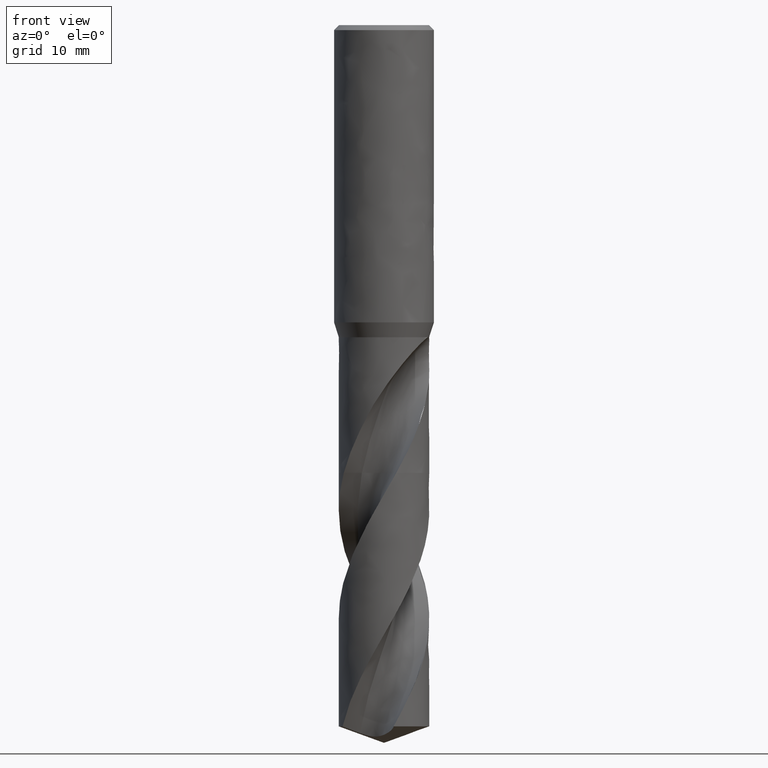
[diagram: clean part render]
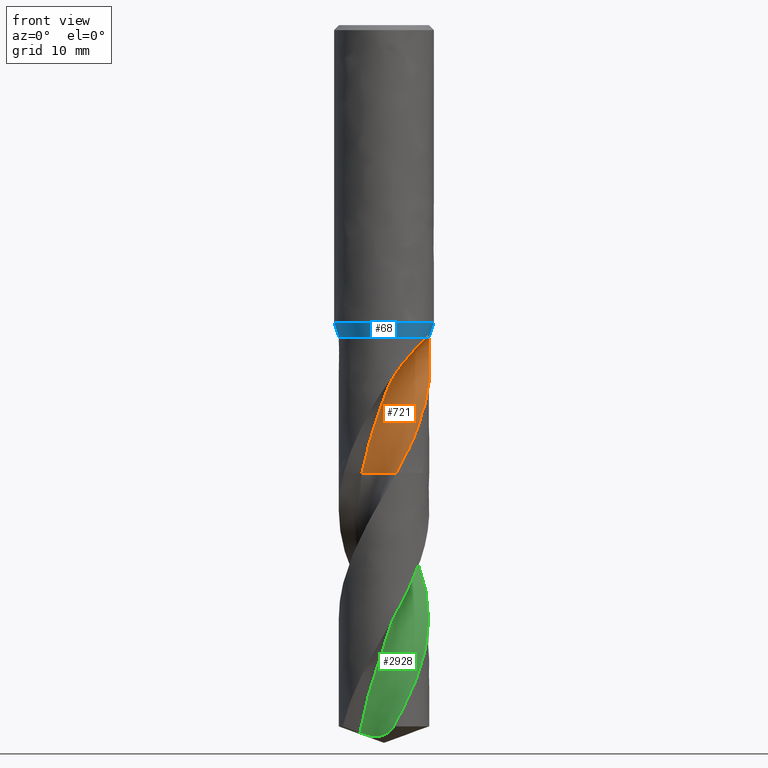
[diagram: same view with three faces highlighted in distinct colors, each labeled with its STEP entity id]
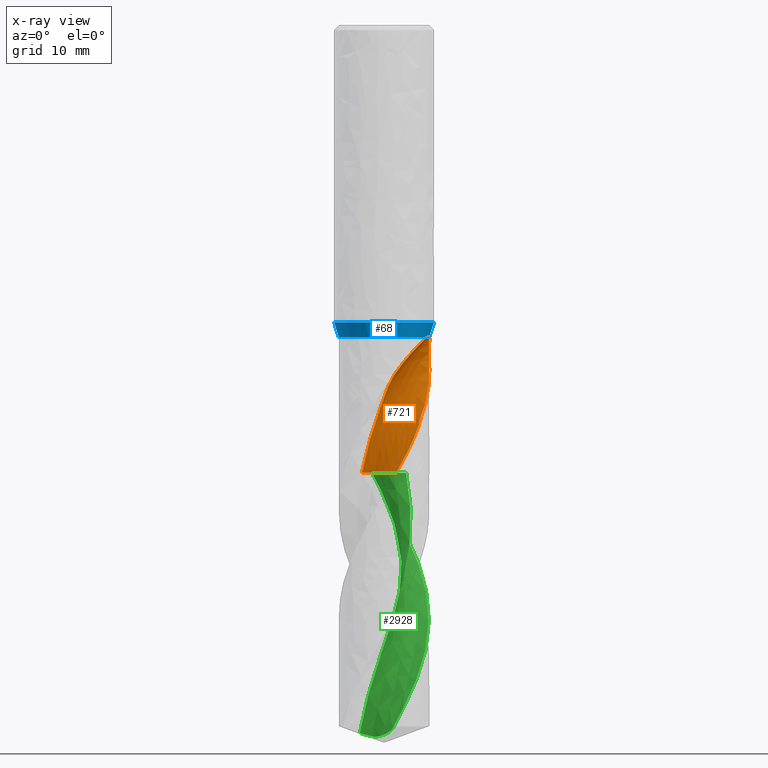
[diagram: x-ray of the same camera — body ghosted, the three highlighted faces saturated]
A machine part, front view with three faces highlighted in distinct colors.
The next image is the same camera in x-ray (body ghosted, the three faces saturated) — at least one of them is partly hidden behind the body in this view.
Their STEP definitions:

[orange] entity #721 — the highlighted face is a freeform B-spline surface patch.
#112 = VERTEX_POINT('', #113);
#113 = CARTESIAN_POINT('', (7.04813221772476, -1.69892090500713, -50.));
#120 = EDGE_CURVE('', #121, #112, #123, .T.);
#121 = VERTEX_POINT('', #122);
#122 = CARTESIAN_POINT('', (7.11593296113032, -1.42048286241087, -49.98));
#123 = B_SPLINE_CURVE_WITH_KNOTS('', 3, (#124, #125, #126, #127, #128, #129, #130), .UNSPECIFIED., .F., .U., (4, 3, 4), (0., 0.197795652538069, 0.287447507305451), .UNSPECIFIED.);
#124 = CARTESIAN_POINT('', (7.11593296111958, -1.4204828624648, -49.98));
#125 = CARTESIAN_POINT('', (7.10299386633717, -1.48513255116391, -49.9801045407071));
#126 = CARTESIAN_POINT('', (7.08811275057315, -1.54947250684794, -49.9835662165148));
#127 = CARTESIAN_POINT('', (7.0715951149362, -1.61299487280875, -49.9898184230969));
#128 = CARTESIAN_POINT('', (7.06410841514163, -1.64178669838491, -49.9926522665574));
#129 = CARTESIAN_POINT('', (7.05627881777199, -1.67043975612574, -49.9960620273466));
#130 = CARTESIAN_POINT('', (7.04813221772466, -1.6989209050076, -50.));
#132 = EDGE_CURVE('', #133, #121, #135, .T.);
#133 = VERTEX_POINT('', #134);
#134 = CARTESIAN_POINT('', (7.11713417037686, -1.41445207432349, -49.98));
#135 = LINE('', #136, #137);
#136 = CARTESIAN_POINT('', (7.11713417037686, -1.41445207432349, -49.98));
#137 = VECTOR('', #138, 0.00614925268701429);
#138 = DIRECTION('', (-0.00120120924653744, -0.00603078808737179, 0.));
#140 = EDGE_CURVE('', #133, #141, #143, .T.);
#141 = VERTEX_POINT('', #142);
#142 = CARTESIAN_POINT('', (7.15758817480123, -1.15387673516091, -50.));
#143 = B_SPLINE_CURVE_WITH_KNOTS('', 3, (#144, #145, #146, #147, #148, #149, #150), .UNSPECIFIED., .F., .U., (4, 3, 4), (0., 0.196941474181358, 0.264655254664728), .UNSPECIFIED.);
#144 = CARTESIAN_POINT('', (7.11713417037549, -1.41445207433038, -49.98));
#145 = CARTESIAN_POINT('', (7.12989818638748, -1.35005783248653, -49.9801042785462));
#146 = CARTESIAN_POINT('', (7.14076925151698, -1.28513811042771, -49.9835634666244));
#147 = CARTESIAN_POINT('', (7.14943394395835, -1.22048648726857, -49.990955360103));
#148 = CARTESIAN_POINT('', (7.15241309847301, -1.19825751880629, -49.9934968920706));
#149 = CARTESIAN_POINT('', (7.1551350604992, -1.17604038513378, -49.9965047696268));
#150 = CARTESIAN_POINT('', (7.15758817480123, -1.1538767351609, -50.));
#525 = VERTEX_POINT('', #526);
#526 = CARTESIAN_POINT('', (-3.54687539199107, -2.50186576905853, -71.75));
#532 = EDGE_CURVE('', #525, #533, #535, .T.);
#533 = VERTEX_POINT('', #534);
#534 = CARTESIAN_POINT('', (2.96414332893148, -6.61637017748787, -54.2717986033843));
#535 = (
   BOUNDED_CURVE ()
   B_SPLINE_CURVE (3, (#536, #537, #538, #539, #540, #541, #542, #543, #544, #545, #546, #547, #548, #549, #550, #551, #552), .UNSPECIFIED., .F., .U.)
   B_SPLINE_CURVE_WITH_KNOTS ((4, 1, 1, 1, 1, 1, 1, 1, 1, 1, 1, 1, 1, 1, 4), (43.3, 43.38, 44.735625, 46.09125, 47.446875, 48.8025, 50.158125, 51.51375, 52.869375, 54.225, 55.580625, 56.93625, 58.291875, 59.6475, 60.7782013966157), .UNSPECIFIED.)
   CURVE ()
   GEOMETRIC_REPRESENTATION_ITEM ()
   RATIONAL_B_SPLINE_CURVE ((1., 1., 1., 1., 1., 1., 1., 1., 1., 1., 1., 1., 1., 1., 1., 1., 1.))
   REPRESENTATION_ITEM ('')
);
#536 = CARTESIAN_POINT('', (-3.54687539199107, -2.50186576905853, -71.75));
#537 = CARTESIAN_POINT('', (-3.54179796609374, -2.50944942054043, -71.7233333333333));
#538 = CARTESIAN_POINT('', (-3.4502535275704, -2.64526996362567, -71.2447916666667));
#539 = CARTESIAN_POINT('', (-3.25737385079705, -2.8998172685903, -70.314375));
#540 = CARTESIAN_POINT('', (-2.93733977722274, -3.23908464021354, -68.95875));
#541 = CARTESIAN_POINT('', (-2.58487105117162, -3.54727185471315, -67.603125));
#542 = CARTESIAN_POINT('', (-2.19132017834958, -3.80419950170171, -66.2475));
#543 = CARTESIAN_POINT('', (-1.75880468528977, -3.985522598718, -64.891875));
#544 = CARTESIAN_POINT('', (-1.3037156000803, -4.09569148138426, -63.53625));
#545 = CARTESIAN_POINT('', (-0.840785843456012, -4.10682407482939, -62.180625));
#546 = CARTESIAN_POINT('', (-0.414600057111729, -4.26465512373971, -60.825));
#547 = CARTESIAN_POINT('', (0.0397860280365514, -4.55096530731644, -59.469375));
#548 = CARTESIAN_POINT('', (0.571156967806368, -4.96493694119616, -58.11375));
#549 = CARTESIAN_POINT('', (1.23082599691484, -5.48634703734506, -56.758125));
#550 = CARTESIAN_POINT('', (2.01882173064699, -6.05271414941331, -55.4774745344614));
#551 = CARTESIAN_POINT('', (2.64933537989706, -6.44044848852091, -54.6486990689229));
#552 = CARTESIAN_POINT('', (2.96414332893148, -6.61637017748787, -54.2717986033843));
#721 = ADVANCED_FACE('', (#722), #991, .T.);
#722 = FACE_OUTER_BOUND('', #723, .T.);
#723 = EDGE_LOOP('', (#724, #733, #784, #796, #929, #930, #931, #932, #990));
#724 = ORIENTED_EDGE('', *, *, #725, .T.);
#725 = EDGE_CURVE('', #525, #726, #728, .T.);
#726 = VERTEX_POINT('', #727);
#727 = CARTESIAN_POINT('', (1.95984002119804, -6.98008073552261, -71.75));
#728 = CIRCLE('', #729, 4.35007998189413);
#729 = AXIS2_PLACEMENT_3D('', #730, #731, #732);
#730 = CARTESIAN_POINT('', (-2.38073861063643, -6.69272735038214, -71.75));
#731 = DIRECTION('', (5.65235801036727E-16, 3.54819568348352E-15, -1.));
#732 = DIRECTION('', (-0.268072492488848, 0.963398743392795, 3.26680309275192E-15));
#733 = ORIENTED_EDGE('', *, *, #734, .F.);
#734 = EDGE_CURVE('', #735, #726, #737, .T.);
#735 = VERTEX_POINT('', #736);
#736 = CARTESIAN_POINT('', (5.56169807215557, -4.65080794638747, -64.1013338860948));
#737 = B_SPLINE_CURVE_WITH_KNOTS('', 3, (#738, #739, #740, #741, #742, #743, #744, #745, #746, #747, #748, #749, #750, #751, #752, #753, #754, #755, #756, #757, #758, #759, #760, #761, #762, #763, #764, #765, #766, #767, #768, #769, #770, #771, #772, #773, #774, #775, #776, #777, #778, #779, #780, #781, #782, #783), .UNSPECIFIED., .F., .U., (4, 3, 3, 3, 3, 3, 3, 3, 3, 3, 3, 3, 3, 3, 3, 4), (0., 0.665167565106666, 0.960745732671178, 1.62570402926482, 2.29063743570172, 2.58619998817512, 3.251129940037, 3.91600807416392, 4.58081656060133, 5.2456367049495, 5.68888689654832, 6.68572816488606, 7.12893088130462, 8.12557510779937, 8.79015366360305, 8.80141812808938), .UNSPECIFIED.);
#738 = CARTESIAN_POINT('', (5.56169807215558, -4.65080794638747, -64.1013338860948));
#739 = CARTESIAN_POINT('', (5.49386321307044, -4.73192869128768, -64.2962152173447));
#740 = CARTESIAN_POINT('', (5.423753162913, -4.81215525668704, -64.4906916517209));
#741 = CARTESIAN_POINT('', (5.35160649419506, -4.89109475795463, -64.6849190698742));
#742 = CARTESIAN_POINT('', (5.31954693318488, -4.92617282603419, -64.7712272234285));
#743 = CARTESIAN_POINT('', (5.28708546594566, -4.96099777905878, -64.8574902626406));
#744 = CARTESIAN_POINT('', (5.25424428582854, -4.99553970906429, -64.9437207424161));
#745 = CARTESIAN_POINT('', (5.18036191701644, -5.07324823241964, -65.1377123129657));
#746 = CARTESIAN_POINT('', (5.10453960025046, -5.14954520813022, -65.3315458549339));
#747 = CARTESIAN_POINT('', (5.02679361691984, -5.22435124516859, -65.5251680834259));
#748 = CARTESIAN_POINT('', (4.94905054371113, -5.29915448213063, -65.7187830644143));
#749 = CARTESIAN_POINT('', (4.86937490217336, -5.37247636564431, -65.9122104703058));
#750 = CARTESIAN_POINT('', (4.78775363810562, -5.44425523839647, -66.1053736998126));
#751 = CARTESIAN_POINT('', (4.7514730287838, -5.47616090991021, -66.1912346546155));
#752 = CARTESIAN_POINT('', (4.7148045053823, -5.50776457622452, -66.2770453666268));
#753 = CARTESIAN_POINT('', (4.67775090677619, -5.53905645883435, -66.3628020396048));
#754 = CARTESIAN_POINT('', (4.59439106524252, -5.60945411179579, -66.5557296617202));
#755 = CARTESIAN_POINT('', (4.50908009438936, -5.6782725211587, -66.7484070780266));
#756 = CARTESIAN_POINT('', (4.42197421960193, -5.74531496100753, -66.9408743166277));
#757 = CARTESIAN_POINT('', (4.33487513294176, -5.81235217626484, -67.1333265563311));
#758 = CARTESIAN_POINT('', (4.24596979701897, -5.87762181677536, -67.3255936676399));
#759 = CARTESIAN_POINT('', (4.155468318185, -5.94092442777729, -67.5177403966325));
#760 = CARTESIAN_POINT('', (4.06497631961302, -6.00422040766839, -67.7098669977625));
#761 = CARTESIAN_POINT('', (3.9728906636113, -6.06555016129756, -67.9019075344842));
#762 = CARTESIAN_POINT('', (3.8793542366868, -6.12479474809566, -68.0938680239371));
#763 = CARTESIAN_POINT('', (3.78581616953155, -6.18404037379161, -68.2858318795598));
#764 = CARTESIAN_POINT('', (3.69081216303374, -6.24120937949531, -68.4777391526159));
#765 = CARTESIAN_POINT('', (3.59454109852092, -6.29617139943346, -68.6696260842675));
#766 = CARTESIAN_POINT('', (3.53035506542085, -6.33281578525022, -68.7975613159884));
#767 = CARTESIAN_POINT('', (3.46560471634446, -6.36848032119701, -68.9254990704098));
#768 = CARTESIAN_POINT('', (3.40035822572746, -6.40312923005054, -69.0534538669198));
#769 = CARTESIAN_POINT('', (3.25362305066383, -6.48105240504902, -69.3412160023017));
#770 = CARTESIAN_POINT('', (3.10432391332228, -6.55386969793713, -69.6291096925246));
#771 = CARTESIAN_POINT('', (2.95277333512581, -6.62145222978841, -69.9169904021931));
#772 = CARTESIAN_POINT('', (2.88539287038694, -6.65149990402734, -70.0449842128249));
#773 = CARTESIAN_POINT('', (2.81755997663637, -6.68051631810001, -70.1729868984271));
#774 = CARTESIAN_POINT('', (2.74929686808953, -6.70849213542902, -70.300982628715));
#775 = CARTESIAN_POINT('', (2.59579141675663, -6.77140225711723, -70.5888107508851));
#776 = CARTESIAN_POINT('', (2.44007055823954, -6.82906203149834, -70.8766612263861));
#777 = CARTESIAN_POINT('', (2.28257947661691, -6.88130299673884, -71.164470322267));
#778 = CARTESIAN_POINT('', (2.17756186572397, -6.9161381207584, -71.3563861014416));
#779 = CARTESIAN_POINT('', (2.07174103321886, -6.94857018114765, -71.5483152371127));
#780 = CARTESIAN_POINT('', (1.96525533890096, -6.97855797804397, -71.7402406906156));
#781 = CARTESIAN_POINT('', (1.96345042914052, -6.97906626479234, -71.7434937860339));
#782 = CARTESIAN_POINT('', (1.9616453230383, -6.9795738506651, -71.7467468892056));
#783 = CARTESIAN_POINT('', (1.95984002119804, -6.98008073552261, -71.75));
#784 = ORIENTED_EDGE('', *, *, #785, .T.);
#785 = EDGE_CURVE('', #735, #786, #788, .T.);
#786 = VERTEX_POINT('', #787);
#787 = CARTESIAN_POINT('', (6.57672462458719, -3.05109705062759, -60.7754140521626));
#788 = (
   BOUNDED_CURVE ()
   B_SPLINE_CURVE (3, (#789, #790, #791, #792, #793, #794, #795), .UNSPECIFIED., .F., .U.)
   B_SPLINE_CURVE_WITH_KNOTS ((4, 1, 1, 1, 4), (50.9486661139052, 51.51375, 52.869375, 54.225, 54.2745859478374), .UNSPECIFIED.)
   CURVE ()
   GEOMETRIC_REPRESENTATION_ITEM ()
   RATIONAL_B_SPLINE_CURVE ((1., 1., 1., 1., 1., 1., 1.))
   REPRESENTATION_ITEM ('')
);
#789 = CARTESIAN_POINT('', (5.56169807215557, -4.65080794638747, -64.1013338860948));
#790 = CARTESIAN_POINT('', (5.61928830986237, -4.55864172931031, -63.9129725907299));
#791 = CARTESIAN_POINT('', (5.80219055870153, -4.23832720560956, -63.2727362953649));
#792 = CARTESIAN_POINT('', (6.0272206396782, -3.6528990687237, -62.180625));
#793 = CARTESIAN_POINT('', (6.36042510770481, -3.25537533076027, -61.2603463507209));
#794 = CARTESIAN_POINT('', (6.5693047181088, -3.0580543484167, -60.7919427014418));
#795 = CARTESIAN_POINT('', (6.5767246245872, -3.0510970506276, -60.7754140521626));
#796 = ORIENTED_EDGE('', *, *, #797, .T.);
#797 = EDGE_CURVE('', #786, #141, #798, .T.);
#798 = B_SPLINE_CURVE_WITH_KNOTS('', 3, (#799, #800, #801, #802, #803, #804, #805, #806, #807, #808, #809, #810, #811, #812, #813, #814, #815, #816, #817, #818, #819, #820, #821, #822, #823, #824, #825, #826, #827, #828, #829, #830, #831, #832, #833, #834, #835, #836, #837, #838, #839, #840, #841, #842, #843, #844, #845, #846, #847, #848, #849, #850, #851, #852, #853, #854, #855, #856, #857, #858, #859, #860, #861, #862, #863, #864, #865, #866, #867, #868, #869, #870, #871, #872, #873, #874, #875, #876, #877, #878, #879, #880, #881, #882, #883, #884, #885, #886, #887, #888, #889, #890, #891, #892, #893, #894, #895, #896, #897, #898, #899, #900, #901, #902, #903, #904, #905, #906, #907, #908, #909, #910, #911, #912, #913, #914, #915, #916, #917, #918, #919, #920, #921, #922, #923, #924, #925, #926, #927, #928), .UNSPECIFIED., .F., .U., (4, 3, 3, 3, 3, 3, 3, 3, 3, 3, 3, 3, 3, 3, 3, 3, 3, 3, 3, 3, 3, 3, 3, 3, 3, 3, 3, 3, 3, 3, 3, 3, 3, 3, 3, 3, 3, 3, 3, 3, 3, 3, 3, 4), (0., 0.443155169938689, 0.886184127195858, 1.32907007061483, 1.77179785319821, 2.21436341036699, 2.65676841753934, 3.09901440747673, 3.54110167101601, 3.98302446625779, 4.42479622975229, 4.8664329268963, 5.30794773034807, 5.74936333921459, 5.88055538079918, 5.96805880307952, 6.40982279569229, 6.85148463821952, 7.29310265854521, 7.73476126890534, 8.1765678980369, 8.47154911801016, 8.76665686029174, 9.06193939571199, 9.35745640511212, 9.65328156741881, 9.94950348547747, 9.98844319149365, 10.2854089895418, 10.4833238216512, 10.6814604051591, 10.87982188555, 11.0783916890041, 11.2771258917901, 11.475949385868, 11.6080574197731, 11.6470385961429, 11.6860327281341, 11.8852850921781, 12.0844357569759, 12.283399458779, 12.4821199717871, 12.6805714838924, 12.9044668340035), .UNSPECIFIED.);
#799 = CARTESIAN_POINT('', (6.57672462458719, -3.0510970506276, -60.7754140521626));
#800 = CARTESIAN_POINT('', (6.6107686342239, -2.97771424018852, -60.6518151392302));
#801 = CARTESIAN_POINT('', (6.64389137655522, -2.90309437038245, -60.5286874740912));
#802 = CARTESIAN_POINT('', (6.67593143572646, -2.82744398096218, -60.4059227563298));
#803 = CARTESIAN_POINT('', (6.7079623697378, -2.75181513712944, -60.2831930025389));
#804 = CARTESIAN_POINT('', (6.7389144898094, -2.6751484185761, -60.1608124191851));
#805 = CARTESIAN_POINT('', (6.76865019653407, -2.59766712974531, -60.038661967506));
#806 = CARTESIAN_POINT('', (6.79837630429804, -2.52021085259, -59.9165509471205));
#807 = CARTESIAN_POINT('', (6.8268896566745, -2.44193286428275, -59.7946574237069));
#808 = CARTESIAN_POINT('', (6.85407885855042, -2.36307067198003, -59.6728554550049));
#809 = CARTESIAN_POINT('', (6.88125835077772, -2.28423664248179, -59.551096983509));
#810 = CARTESIAN_POINT('', (6.9071173813743, -2.20481062280203, -59.429418574877));
#811 = CARTESIAN_POINT('', (6.93157124497731, -2.12504589969487, -59.3076883325861));
#812 = CARTESIAN_POINT('', (6.95601614813482, -2.04531040417582, -59.1860026949931));
#813 = CARTESIAN_POINT('', (6.97905880475434, -1.96523047883732, -59.0642522775528));
#814 = CARTESIAN_POINT('', (7.00064523073253, -1.885064018389, -58.942309414846));
#815 = CARTESIAN_POINT('', (7.02222382577909, -1.80492664001616, -58.8204107894863));
#816 = CARTESIAN_POINT('', (7.04234954136148, -1.72469472722833, -58.6983077604014));
#817 = CARTESIAN_POINT('', (7.06099911810853, -1.64462501928914, -58.5758824966732));
#818 = CARTESIAN_POINT('', (7.07964199148631, -1.56458409145721, -58.4535012372546));
#819 = CARTESIAN_POINT('', (7.09681189261477, -1.48469659804815, -58.3307850538274));
#820 = CARTESIAN_POINT('', (7.11251402157184, -1.40522037166574, -58.2076255958102));
#821 = CARTESIAN_POINT('', (7.12821051488172, -1.32577267007594, -58.0845103409235));
#822 = CARTESIAN_POINT('', (7.14244246637415, -1.2467244200062, -57.9609392141452));
#823 = CARTESIAN_POINT('', (7.15523975563408, -1.16835099152336, -57.8368041334008));
#824 = CARTESIAN_POINT('', (7.1680322839598, -1.09000672005412, -57.7127152342298));
#825 = CARTESIAN_POINT('', (7.17939285717763, -1.01232723462539, -57.5880460831109));
#826 = CARTESIAN_POINT('', (7.18937898252589, -0.935590639978273, -57.4627013548892));
#827 = CARTESIAN_POINT('', (7.19936169501114, -0.858880270866686, -57.3373994645421));
#828 = CARTESIAN_POINT('', (7.2079725048716, -0.783100395265315, -57.2114038558058));
#829 = CARTESIAN_POINT('', (7.21529489877795, -0.708533361013358, -57.0846330431055));
#830 = CARTESIAN_POINT('', (7.22261505395131, -0.633989124726359, -56.9579009890414));
#831 = CARTESIAN_POINT('', (7.22864893033122, -0.560643527802924, -56.8303725148575));
#832 = CARTESIAN_POINT('', (7.23350430056504, -0.488789866616667, -56.7019789086432));
#833 = CARTESIAN_POINT('', (7.23835833069508, -0.416956037360411, -56.5736207396351));
#834 = CARTESIAN_POINT('', (7.24203535876032, -0.346600424709488, -56.4443706938259));
#835 = CARTESIAN_POINT('', (7.24466672333027, -0.278036090950751, -56.3141728127297));
#836 = CARTESIAN_POINT('', (7.2472974967148, -0.209487161456145, -56.1840041830305));
#837 = CARTESIAN_POINT('', (7.24888382991969, -0.142711616683251, -56.0528567920854));
#838 = CARTESIAN_POINT('', (7.24958001132818, -0.0780362694607528, -55.9206964211177));
#839 = CARTESIAN_POINT('', (7.2497869216831, -0.0588142694410904, -55.8814173640668));
#840 = CARTESIAN_POINT('', (7.24991537143914, -0.0397768736374475, -55.8420469000272));
#841 = CARTESIAN_POINT('', (7.24996977976324, -0.0209330485057179, -55.8025845165007));
#842 = CARTESIAN_POINT('', (7.25000606942306, -0.00836445693596521, -55.7762636088587));
#843 = CARTESIAN_POINT('', (7.25000942432084, 0.00411820361691415, -55.7499014218698));
#844 = CARTESIAN_POINT('', (7.24998119630112, 0.0165122160901981, -55.7234978492313));
#845 = CARTESIAN_POINT('', (7.249838686187, 0.0790838080577549, -55.5901985180274));
#846 = CARTESIAN_POINT('', (7.24888939282621, 0.139411655518865, -55.4558155156074));
#847 = CARTESIAN_POINT('', (7.24731968422392, 0.197122790819572, -55.3203500328927));
#848 = CARTESIAN_POINT('', (7.2457503385889, 0.254820581444149, -55.1849158741675));
#849 = CARTESIAN_POINT('', (7.24356037615796, 0.309924017524795, -55.0483452093248));
#850 = CARTESIAN_POINT('', (7.24095630024174, 0.362010853413869, -54.9106713572178));
#851 = CARTESIAN_POINT('', (7.23835248270496, 0.414092521186524, -54.7730111652705));
#852 = CARTESIAN_POINT('', (7.23533353934256, 0.463185110831994, -54.6341801629712));
#853 = CARTESIAN_POINT('', (7.23212368993744, 0.50880932916533, -54.4942596998538));
#854 = CARTESIAN_POINT('', (7.22891354550836, 0.554437740915846, -54.3543263763545));
#855 = CARTESIAN_POINT('', (7.22551069719515, 0.596627493555048, -54.2132155265821));
#856 = CARTESIAN_POINT('', (7.22215450585682, 0.634810439054086, -54.0710733770824));
#857 = CARTESIAN_POINT('', (7.21879718971461, 0.673006181298278, -53.9288835896427));
#858 = CARTESIAN_POINT('', (7.21548449288795, 0.707223939568429, -53.7855449920096));
#859 = CARTESIAN_POINT('', (7.2124661372893, 0.736771483198982, -53.6413023001868));
#860 = CARTESIAN_POINT('', (7.21045087052303, 0.756499504221406, -53.5449957207909));
#861 = CARTESIAN_POINT('', (7.20856587952601, 0.774155050233256, -53.4482332883948));
#862 = CARTESIAN_POINT('', (7.20688563307628, 0.789493173978514, -53.3511244212384));
#863 = CARTESIAN_POINT('', (7.20520466594116, 0.804837876497912, -53.253973902488));
#864 = CARTESIAN_POINT('', (7.2037278524457, 0.817872498058883, -53.1564197493124));
#865 = CARTESIAN_POINT('', (7.20252744057899, 0.828310610644729, -53.0586132379935));
#866 = CARTESIAN_POINT('', (7.20132631770499, 0.838754905753766, -52.9607487956051));
#867 = CARTESIAN_POINT('', (7.20040139320952, 0.846607555037396, -52.8625601398619));
#868 = CARTESIAN_POINT('', (7.19981913697122, 0.851530618887541, -52.7642575483373));
#869 = CARTESIAN_POINT('', (7.19923641838273, 0.85645759197794, -52.6658768980143));
#870 = CARTESIAN_POINT('', (7.19899702672653, 0.858454192249893, -52.5672908266942));
#871 = CARTESIAN_POINT('', (7.19915524446205, 0.85712529196998, -52.4687942482057));
#872 = CARTESIAN_POINT('', (7.19931362718047, 0.855795005967856, -52.3701949615617));
#873 = CARTESIAN_POINT('', (7.19987150290069, 0.851130273417024, -52.2715675368033));
#874 = CARTESIAN_POINT('', (7.20086050068619, 0.842679090554325, -52.1733269471051));
#875 = CARTESIAN_POINT('', (7.20185082489895, 0.834216573106745, -52.0749545987738));
#876 = CARTESIAN_POINT('', (7.2032762636738, 0.821942609937458, -51.9768166046377));
#877 = CARTESIAN_POINT('', (7.20513034216488, 0.805355047426327, -51.8794968788741));
#878 = CARTESIAN_POINT('', (7.2053740691377, 0.803174537584444, -51.8667037623632));
#879 = CARTESIAN_POINT('', (7.20562515898837, 0.800919203186414, -51.853923303809));
#880 = CARTESIAN_POINT('', (7.20588352787754, 0.798587867841223, -51.8411570993185));
#881 = CARTESIAN_POINT('', (7.20785392599326, 0.780808410004151, -51.7437982208767));
#882 = CARTESIAN_POINT('', (7.21025693530139, 0.758579070266021, -51.6471229415917));
#883 = CARTESIAN_POINT('', (7.21301463959886, 0.731382122376864, -51.5519837598963));
#884 = CARTESIAN_POINT('', (7.21485252997758, 0.713256535488584, -51.4885776192025));
#885 = CARTESIAN_POINT('', (7.2168492636232, 0.6928980255184, -51.4257637664814));
#886 = CARTESIAN_POINT('', (7.21895912059198, 0.670171034305358, -51.3638663853353));
#887 = CARTESIAN_POINT('', (7.22107134152574, 0.647418578896269, -51.3018996519801));
#888 = CARTESIAN_POINT('', (7.22330032904632, 0.622256558856845, -51.240759361052));
#889 = CARTESIAN_POINT('', (7.22557734747381, 0.594585566317672, -51.1808332139532));
#890 = CARTESIAN_POINT('', (7.22785695045353, 0.566883165545534, -51.1208390470902));
#891 = CARTESIAN_POINT('', (7.23018884744516, 0.536614360050847, -51.0619558147408));
#892 = CARTESIAN_POINT('', (7.23247831511609, 0.503743408270089, -51.004630615023));
#893 = CARTESIAN_POINT('', (7.23477018723024, 0.470837934780036, -50.9472452112718));
#894 = CARTESIAN_POINT('', (7.23702414492442, 0.4352533551151, -50.8913027401674));
#895 = CARTESIAN_POINT('', (7.23911956162828, 0.397049080657338, -50.8372920924294));
#896 = CARTESIAN_POINT('', (7.24121671316341, 0.358813176228191, -50.7832367283536));
#897 = CARTESIAN_POINT('', (7.24315949506306, 0.317859384780825, -50.730989383577));
#898 = CARTESIAN_POINT('', (7.2448065005587, 0.27436976776326, -50.6810463620223));
#899 = CARTESIAN_POINT('', (7.24645424605402, 0.230860610857601, -50.6310809010645));
#900 = CARTESIAN_POINT('', (7.24780933946183, 0.184697050749961, -50.5832922982904));
#901 = CARTESIAN_POINT('', (7.24872062919705, 0.136195594103106, -50.5381360435437));
#902 = CARTESIAN_POINT('', (7.24932613457657, 0.103968858983758, -50.5081320238439));
#903 = CARTESIAN_POINT('', (7.24973658249042, 0.0706634872173614, -50.4792415653692));
#904 = CARTESIAN_POINT('', (7.2499086102532, 0.0364025133420045, -50.4515770327159));
#905 = CARTESIAN_POINT('', (7.24995937056174, 0.0262931125299528, -50.4434140467515));
#906 = CARTESIAN_POINT('', (7.24998941096911, 0.0160982555945223, -50.4353556221438));
#907 = CARTESIAN_POINT('', (7.24999766281555, 0.00582144046155531, -50.4274042761023));
#908 = CARTESIAN_POINT('', (7.25000591740454, -0.00445879023086066, -50.4194502873845));
#909 = CARTESIAN_POINT('', (7.24999236955659, -0.0148221686651013, -50.4116025700624));
#910 = CARTESIAN_POINT('', (7.24995597757129, -0.025265060425665, -50.4038634593222));
#911 = CARTESIAN_POINT('', (7.24977002166632, -0.0786261884850777, -50.3643181218097));
#912 = CARTESIAN_POINT('', (7.24898426370434, -0.134162159588918, -50.3275558688856));
#913 = CARTESIAN_POINT('', (7.24747448948987, -0.191346607478589, -50.2938077165255));
#914 = CARTESIAN_POINT('', (7.24596548587053, -0.248501868185096, -50.2600767893645));
#915 = CARTESIAN_POINT('', (7.24372857090229, -0.307457546462026, -50.229263395966));
#916 = CARTESIAN_POINT('', (7.24067163236691, -0.367660593805126, -50.2014600763282));
#917 = CARTESIAN_POINT('', (7.2376175636908, -0.427807122421397, -50.1736828584958));
#918 = CARTESIAN_POINT('', (7.23373733522854, -0.489347733172212, -50.1488376679086));
#919 = CARTESIAN_POINT('', (7.22897428416952, -0.551752479664385, -50.1268953109151));
#920 = CARTESIAN_POINT('', (7.22421705487917, -0.614080950258173, -50.104979773564));
#921 = CARTESIAN_POINT('', (7.21856892044612, -0.677409245383395, -50.0859081347242));
#922 = CARTESIAN_POINT('', (7.21200576914999, -0.7412643157115, -50.0695614135568));
#923 = CARTESIAN_POINT('', (7.20545150215874, -0.805032947698125, -50.0532368203655));
#924 = CARTESIAN_POINT('', (7.1979725971136, -0.869449516526922, -50.0395956520643));
#925 = CARTESIAN_POINT('', (7.18957110149992, -0.934113149719153, -50.0284637789993));
#926 = CARTESIAN_POINT('', (7.18009243448486, -1.00706742776639, -50.0159046677543));
#927 = CARTESIAN_POINT('', (7.16942090510804, -1.08047737807286, -50.0065133679143));
#928 = CARTESIAN_POINT('', (7.15758817480123, -1.15387673516091, -50.));
#929 = ORIENTED_EDGE('', *, *, #140, .F.);
#930 = ORIENTED_EDGE('', *, *, #132, .T.);
#931 = ORIENTED_EDGE('', *, *, #120, .T.);
#932 = ORIENTED_EDGE('', *, *, #933, .F.);
#933 = EDGE_CURVE('', #533, #112, #934, .T.);
#934 = B_SPLINE_CURVE_WITH_KNOTS('', 3, (#935, #936, #937, #938, #939, #940, #941, #942, #943, #944, #945, #946, #947, #948, #949, #950, #951, #952, #953, #954, #955, #956, #957, #958, #959, #960, #961, #962, #963, #964, #965, #966, #967, #968, #969, #970, #971, #972, #973, #974, #975, #976, #977, #978, #979, #980, #981, #982, #983, #984, #985, #986, #987, #988, #989), .UNSPECIFIED., .F., .U., (4, 3, 3, 3, 3, 3, 3, 3, 3, 3, 3, 3, 3, 3, 3, 3, 3, 3, 4), (0., 0.672421373933563, 1.34528607365308, 2.01851075843997, 2.69200680880925, 3.13914744602455, 3.58630646641721, 4.03346248705603, 4.48058992032883, 4.92765723170482, 5.37462440682428, 5.82143926294988, 6.26803206357538, 6.56486793800925, 6.86157232343776, 7.15811084086089, 7.45444023810941, 7.75050636193033, 8.0494012042086), .UNSPECIFIED.);
#935 = CARTESIAN_POINT('', (2.96414332893149, -6.61637017748788, -54.2717986033843));
#936 = CARTESIAN_POINT('', (3.09620599777549, -6.55720591243711, -54.1006320583432));
#937 = CARTESIAN_POINT('', (3.22972920495464, -6.49263551074062, -53.932334686681));
#938 = CARTESIAN_POINT('', (3.36397548937478, -6.4223180322128, -53.7671913179513));
#939 = CARTESIAN_POINT('', (3.49831028204564, -6.3519541935414, -53.6019390705979));
#940 = CARTESIAN_POINT('', (3.63348084273458, -6.27577625442699, -53.4396967721979));
#941 = CARTESIAN_POINT('', (3.76869047507459, -6.19350241003279, -53.2807798712058));
#942 = CARTESIAN_POINT('', (3.90397244506084, -6.1111845488319, -53.1217779490924));
#943 = CARTESIAN_POINT('', (4.03942356723296, -6.02268461723873, -52.9659511330804));
#944 = CARTESIAN_POINT('', (4.17420208057349, -5.92777673251413, -52.8136806544227));
#945 = CARTESIAN_POINT('', (4.30903492087289, -5.83283059201253, -52.6613487980882));
#946 = CARTESIAN_POINT('', (4.44334353926897, -5.73136499032687, -52.5124167202342));
#947 = CARTESIAN_POINT('', (4.57621328089665, -5.62323501267243, -52.3673195163814));
#948 = CARTESIAN_POINT('', (4.66442680628475, -5.55144645937064, -52.2709880588274));
#949 = CARTESIAN_POINT('', (4.75206325750112, -5.4766755621777, -52.176283610883));
#950 = CARTESIAN_POINT('', (4.83884404341252, -5.39889695433582, -52.0833613018296));
#951 = CARTESIAN_POINT('', (4.92562839711993, -5.32111514880215, -51.9904351724854));
#952 = CARTESIAN_POINT('', (5.01160778373261, -5.24027979202718, -51.8992367390481));
#953 = CARTESIAN_POINT('', (5.096493813985, -5.15637962179014, -51.8099511179348));
#954 = CARTESIAN_POINT('', (5.18137927478182, -5.07248001439505, -51.7206660957917));
#955 = CARTESIAN_POINT('', (5.2652260108235, -4.98546150315642, -51.6332360719557));
#956 = CARTESIAN_POINT('', (5.34773349414134, -4.89532904671778, -51.5478829451956));
#957 = CARTESIAN_POINT('', (5.43023570263001, -4.80520235258446, -51.462535275191));
#958 = CARTESIAN_POINT('', (5.51145772868776, -4.71189753176215, -51.3792028077035));
#959 = CARTESIAN_POINT('', (5.59108427137196, -4.61543894666771, -51.2981533460281));
#960 = CARTESIAN_POINT('', (5.67070010726783, -4.51899333164101, -51.2171147824704));
#961 = CARTESIAN_POINT('', (5.74878459423007, -4.41931724661132, -51.1382930425519));
#962 = CARTESIAN_POINT('', (5.82500460701717, -4.31645935092973, -51.0620142793641));
#963 = CARTESIAN_POINT('', (5.90120754768435, -4.21362449384739, -50.9857526014554));
#964 = CARTESIAN_POINT('', (5.97561601453013, -4.10751528192908, -50.9119624895229));
#965 = CARTESIAN_POINT('', (6.04787545497205, -3.99821241070888, -50.8410456711724));
#966 = CARTESIAN_POINT('', (6.12011027059614, -3.88894678809282, -50.7701530200964));
#967 = CARTESIAN_POINT('', (6.19027298310957, -3.776374451996, -50.7020561114138));
#968 = CARTESIAN_POINT('', (6.25798334521025, -3.6606207740042, -50.6372563757193));
#969 = CARTESIAN_POINT('', (6.32566005700116, -3.54492462261542, -50.5724888438281));
#970 = CARTESIAN_POINT('', (6.39096968442828, -3.42590672635796, -50.5109336959013));
#971 = CARTESIAN_POINT('', (6.4535013670241, -3.30375848176255, -50.4532261143693));
#972 = CARTESIAN_POINT('', (6.49506416574624, -3.22257047124323, -50.4148697405058));
#973 = CARTESIAN_POINT('', (6.53543241725574, -3.13993684626239, -50.378184912453));
#974 = CARTESIAN_POINT('', (6.57447667962103, -3.05593789025878, -50.3434014153271));
#975 = CARTESIAN_POINT('', (6.61350364659966, -2.97197614316463, -50.3086333262021));
#976 = CARTESIAN_POINT('', (6.65123667246515, -2.88658739552603, -50.2757386309481));
#977 = CARTESIAN_POINT('', (6.68753869454029, -2.79987967759801, -50.2449907205634));
#978 = CARTESIAN_POINT('', (6.72382042253052, -2.71322043228087, -50.2142599993232));
#979 = CARTESIAN_POINT('', (6.75870390104773, -2.62516805534817, -50.1856466352532));
#980 = CARTESIAN_POINT('', (6.79204417229122, -2.53586986291586, -50.1594774748814));
#981 = CARTESIAN_POINT('', (6.82536093183915, -2.44663464393386, -50.1333267691085));
#982 = CARTESIAN_POINT('', (6.85717037644724, -2.35606304449047, -50.1095896432858));
#983 = CARTESIAN_POINT('', (6.88732011631084, -2.26435898555421, -50.0886576355767));
#984 = CARTESIAN_POINT('', (6.91744306968133, -2.17273640095747, -50.0677442248797));
#985 = CARTESIAN_POINT('', (6.94594578879645, -2.07986889512872, -50.0496049551562));
#986 = CARTESIAN_POINT('', (6.97267047191358, -1.98604292252321, -50.0347073294445));
#987 = CARTESIAN_POINT('', (6.99965049192445, -1.8913205040256, -50.0196673666486));
#988 = CARTESIAN_POINT('', (7.02485881879985, -1.79547277643045, -50.0079084482588));
#989 = CARTESIAN_POINT('', (7.04813221772476, -1.69892090500712, -50.));
#990 = ORIENTED_EDGE('', *, *, #532, .F.);
#991 = (
   BOUNDED_SURFACE ()
   B_SPLINE_SURFACE (3, 2, ((#992, #993, #994, #995, #996), (#997, #998, #999, #1000, #1001), (#1002, #1003, #1004, #1005, #1006), (#1007, #1008, #1009, #1010, #1011), (#1012, #1013, #1014, #1015, #1016), (#1017, #1018, #1019, #1020, #1021), (#1022, #1023, #1024, #1025, #1026), (#1027, #1028, #1029, #1030, #1031), (#1032, #1033, #1034, #1035, #1036), (#1037, #1038, #1039, #1040, #1041), (#1042, #1043, #1044, #1045, #1046), (#1047, #1048, #1049, #1050, #1051), (#1052, #1053, #1054, #1055, #1056), (#1057, #1058, #1059, #1060, #1061), (#1062, #1063, #1064, #1065, #1066), (#1067, #1068, #1069, #1070, #1071), (#1072, #1073, #1074, #1075, #1076), (#1077, #1078, #1079, #1080, #1081), (#1082, #1083, #1084, #1085, #1086)), .UNSPECIFIED., .F., .F., .U.)
   B_SPLINE_SURFACE_WITH_KNOTS ((4, 1, 1, 1, 1, 1, 1, 1, 1, 1, 1, 1, 1, 1, 1, 1, 4), (3, 2, 3), (43.299999999995, 43.38, 44.735625, 46.09125, 47.446875, 48.8025, 50.158125, 51.51375, 52.869375, 54.225, 55.580625, 56.93625, 58.291875, 59.6475, 61.003125, 62.35875, 65.07), (0., 0.5, 1.), .UNSPECIFIED.)
   GEOMETRIC_REPRESENTATION_ITEM ()
   RATIONAL_B_SPLINE_SURFACE (((1., 0.887010833178222, 1., 0.887010833178222, 1.), (1., 0.887010833178222, 1., 0.887010833178222, 1.), (1., 0.887010833178222, 1., 0.887010833178222, 1.), (1., 0.887010833178222, 1., 0.887010833178222, 1.), (1., 0.887010833178222, 1., 0.887010833178222, 1.), (1., 0.887010833178222, 1., 0.887010833178222, 1.), (1., 0.887010833178222, 1., 0.887010833178222, 1.), (1., 0.887010833178221, 1., 0.887010833178221, 1.), (1., 0.887010833178222, 1., 0.887010833178222, 1.), (1., 0.887010833178222, 1., 0.887010833178222, 1.), (1., 0.887010833178222, 1., 0.887010833178222, 1.), (1., 0.887010833178222, 1., 0.887010833178222, 1.), (1., 0.887010833178222, 1., 0.887010833178222, 1.), (1., 0.887010833178221, 1., 0.887010833178221, 1.), (1., 0.887010833178222, 1., 0.887010833178222, 1.), (1., 0.887010833178222, 1., 0.887010833178222, 1.), (1., 0.887010833178222, 1., 0.887010833178222, 1.), (1., 0.887010833178222, 1., 0.887010833178222, 1.), (1., 0.887010833178222, 1., 0.887010833178222, 1.)))
   REPRESENTATION_ITEM ('')
   SURFACE ()
);
#992 = CARTESIAN_POINT('', (1.95622544155787, -7.03027364281983, -71.750000000005));
#993 = CARTESIAN_POINT('', (2.13194159661845, -4.77259356317146, -71.750000000005));
#994 = CARTESIAN_POINT('', (0.383344990052907, -3.33370322103351, -71.750000000005));
#995 = CARTESIAN_POINT('', (-1.36525161651264, -1.89481287889557, -71.750000000005));
#996 = CARTESIAN_POINT('', (-3.54687539199201, -2.50186576905711, -71.750000000005));
#997 = CARTESIAN_POINT('', (1.97110333214249, -7.0265214556717, -71.7233333333366));
#998 = CARTESIAN_POINT('', (2.1420827961046, -4.76835646130189, -71.7233333333366));
#999 = CARTESIAN_POINT('', (0.390372116253329, -3.33306805370257, -71.7233333333366));
#1000 = CARTESIAN_POINT('', (-1.36133856359794, -1.89777964610325, -71.7233333333366));
#1001 = CARTESIAN_POINT('', (-3.54179796609437, -2.50944942053949, -71.7233333333366));
#1002 = CARTESIAN_POINT('', (2.23790571281858, -6.95835601845354, -71.2447916666683));
#1003 = CARTESIAN_POINT('', (2.32384979098945, -4.69175122118309, -71.2447916666683));
#1004 = CARTESIAN_POINT('', (0.516451335792839, -3.32127885162032, -71.2447916666683));
#1005 = CARTESIAN_POINT('', (-1.29094711940377, -1.95080648205754, -71.2447916666683));
#1006 = CARTESIAN_POINT('', (-3.45025352757074, -2.64526996362522, -71.2447916666683));
#1007 = CARTESIAN_POINT('', (2.74997995568701, -6.79685956336091, -70.314375));
#1008 = CARTESIAN_POINT('', (2.66946069398256, -4.52299868892925, -70.314375));
#1009 = CARTESIAN_POINT('', (0.760638959077052, -3.2847231896445, -70.314375));
#1010 = CARTESIAN_POINT('', (-1.14818277582846, -2.04644769035975, -70.314375));
#1011 = CARTESIAN_POINT('', (-3.25737385079705, -2.8998172685903, -70.314375));
#1012 = CARTESIAN_POINT('', (3.46807757584755, -6.48192695424966, -68.95875));
#1013 = CARTESIAN_POINT('', (3.14473276578373, -4.22368626976617, -68.95875));
#1014 = CARTESIAN_POINT('', (1.10942732872349, -3.19328118771121, -68.95875));
#1015 = CARTESIAN_POINT('', (-0.925878108336737, -2.16287610565624, -68.95875));
#1016 = CARTESIAN_POINT('', (-2.93733977722274, -3.23908464021354, -68.95875));
#1017 = CARTESIAN_POINT('', (4.15530026508414, -6.0980689970189, -67.603125));
#1018 = CARTESIAN_POINT('', (3.59081775592596, -3.87882432419483, -67.603125));
#1019 = CARTESIAN_POINT('', (1.44914507941922, -3.06831487470765, -67.603125));
#1020 = CARTESIAN_POINT('', (-0.692527597087515, -2.25780542522048, -67.603125));
#1021 = CARTESIAN_POINT('', (-2.58487105117162, -3.54727185471315, -67.603125));
#1022 = CARTESIAN_POINT('', (4.78458555668078, -5.62018601251984, -66.2475));
#1023 = CARTESIAN_POINT('', (3.98588076198059, -3.47350461882144, -66.2475));
#1024 = CARTESIAN_POINT('', (1.76930406005478, -2.8964794204049, -66.2475));
#1025 = CARTESIAN_POINT('', (-0.447272641871038, -2.31945422198835, -66.2475));
#1026 = CARTESIAN_POINT('', (-2.19132017834958, -3.80419950170171, -66.2475));
#1027 = CARTESIAN_POINT('', (5.31618982534019, -5.03786823256217, -64.891875));
#1028 = CARTESIAN_POINT('', (4.30066271540217, -3.00457111163404, -64.891875));
#1029 = CARTESIAN_POINT('', (2.05260080141084, -2.67019090310587, -64.891875));
#1030 = CARTESIAN_POINT('', (-0.195461112580482, -2.33581069457769, -64.891875));
#1031 = CARTESIAN_POINT('', (-1.75880468528977, -3.985522598718, -64.891875));
#1032 = CARTESIAN_POINT('', (5.74789342749873, -4.37958417987871, -63.53625));
#1033 = CARTESIAN_POINT('', (4.53661274097262, -2.49242637312198, -63.53625));
#1034 = CARTESIAN_POINT('', (2.29598150607342, -2.40222017406604, -63.53625));
#1035 = CARTESIAN_POINT('', (0.055350271174233, -2.3120139750101, -63.53625));
#1036 = CARTESIAN_POINT('', (-1.3037156000803, -4.09569148138426, -63.53625));
#1037 = CARTESIAN_POINT('', (6.0272206396782, -3.6528990687237, -62.180625));
#1038 = CARTESIAN_POINT('', (4.65736018023509, -1.94799909070963, -62.180625));
#1039 = CARTESIAN_POINT('', (2.47506819731103, -2.09223263272882, -62.180625));
#1040 = CARTESIAN_POINT('', (0.292776214386967, -2.23646617474801, -62.180625));
#1041 = CARTESIAN_POINT('', (-0.840785843456012, -4.10682407482939, -62.180625));
#1042 = CARTESIAN_POINT('', (6.5180505718106, -3.067323039443, -60.825));
#1043 = CARTESIAN_POINT('', (4.94291194103529, -1.48108504373444, -60.825));
#1044 = CARTESIAN_POINT('', (2.74007944152278, -1.86153433638946, -60.825));
#1045 = CARTESIAN_POINT('', (0.537246942010269, -2.24198362904447, -60.825));
#1046 = CARTESIAN_POINT('', (-0.414600057111729, -4.26465512373971, -60.825));
#1047 = CARTESIAN_POINT('', (7.22824958759735, -2.50972713939468, -59.469375));
#1048 = CARTESIAN_POINT('', (5.38683356369433, -1.01070923437618, -59.469375));
#1049 = CARTESIAN_POINT('', (3.10271714154261, -1.65930758675593, -59.469375));
#1050 = CARTESIAN_POINT('', (0.818600719390893, -2.30790593913567, -59.469375));
#1051 = CARTESIAN_POINT('', (0.0397860280365514, -4.55096530731644, -59.469375));
#1052 = CARTESIAN_POINT('', (8.18410157797166, -1.90240623250188, -58.11375));
#1053 = CARTESIAN_POINT('', (5.99949720428635, -0.479036008188258, -58.11375));
#1054 = CARTESIAN_POINT('', (3.58050298376445, -1.45214752598524, -58.11375));
#1055 = CARTESIAN_POINT('', (1.16150876324254, -2.42525904378223, -58.11375));
#1056 = CARTESIAN_POINT('', (0.571156967806368, -4.96493694119616, -58.11375));
#1057 = CARTESIAN_POINT('', (9.3825945977336, -1.15268132553026, -56.758125));
#1058 = CARTESIAN_POINT('', (6.76893271226827, 0.179268391616147, -56.758125));
#1059 = CARTESIAN_POINT('', (4.17872850848589, -1.19774311278338, -56.758125));
#1060 = CARTESIAN_POINT('', (1.58852430470351, -2.57475461718291, -56.758125));
#1061 = CARTESIAN_POINT('', (1.23082599691484, -5.48634703734506, -56.758125));
#1062 = CARTESIAN_POINT('', (10.8033940940949, -0.17088609180711, -55.4025));
#1063 = CARTESIAN_POINT('', (7.6712184206694, 1.025565022945, -55.4025));
#1064 = CARTESIAN_POINT('', (4.89460088333951, -0.853906916346032, -55.4025));
#1065 = CARTESIAN_POINT('', (2.11798334600962, -2.73337885563706, -55.4025));
#1066 = CARTESIAN_POINT('', (2.06495423509216, -6.08587160470985, -55.4025));
#1067 = CARTESIAN_POINT('', (12.4056557786978, 1.13000703364011, -54.046875));
#1068 = CARTESIAN_POINT('', (8.66818371285367, 2.11716885117906, -54.046875));
#1069 = CARTESIAN_POINT('', (5.71582218348417, -0.378176274624338, -54.046875));
#1070 = CARTESIAN_POINT('', (2.76346065411466, -2.87352140042773, -54.046875));
#1071 = CARTESIAN_POINT('', (3.1141227102874, -6.7232255474152, -54.046875));
#1072 = CARTESIAN_POINT('', (14.7037601451111, 3.39583485740324, -52.239375));
#1073 = CARTESIAN_POINT('', (10.0556676859079, 3.96618196100409, -52.239375));
#1074 = CARTESIAN_POINT('', (6.92243038145905, 0.485825180170056, -52.239375));
#1075 = CARTESIAN_POINT('', (3.78919307701016, -2.99453160066398, -52.239375));
#1076 = CARTESIAN_POINT('', (4.84298336155746, -7.5573799834268, -52.239375));
#1077 = CARTESIAN_POINT('', (16.4935189788867, 5.79805376033349, -50.88375));
#1078 = CARTESIAN_POINT('', (11.0685658158751, 5.85786063003137, -50.88375));
#1079 = CARTESIAN_POINT('', (7.90794959368806, 1.44830296756902, -50.88375));
#1080 = CARTESIAN_POINT('', (4.74733337150101, -2.96125469489332, -50.88375));
#1081 = CARTESIAN_POINT('', (6.54657655572187, -8.07949830443039, -50.88375));
#1082 = CARTESIAN_POINT('', (17.5865752443217, 7.78096031949427, -49.98));
#1083 = CARTESIAN_POINT('', (11.6324264043398, 7.378555458549, -49.98));
#1084 = CARTESIAN_POINT('', (8.5468976956745, 2.27039231816563, -49.98));
#1085 = CARTESIAN_POINT('', (5.46136898700915, -2.83777082221773, -49.98));
#1086 = CARTESIAN_POINT('', (7.87594470504075, -8.29520998199418, -49.98));

[blue] entity #68 — the highlighted face is a freeform B-spline surface patch.
#68 = ADVANCED_FACE('', (#69), #178, .T.);
#69 = FACE_OUTER_BOUND('', #70, .T.);
#70 = EDGE_LOOP('', (#71, #85, #94, #102, #109, #110, #119, #131, #139, #151, #160, #172));
#71 = ORIENTED_EDGE('', *, *, #72, .T.);
#72 = EDGE_CURVE('', #73, #75, #77, .T.);
#73 = VERTEX_POINT('', #74);
#74 = CARTESIAN_POINT('', (-7.11713417037506, 1.41445207433257, -49.98));
#75 = VERTEX_POINT('', #76);
#76 = CARTESIAN_POINT('', (-7.15758817480123, 1.15387673516092, -50.));
#77 = B_SPLINE_CURVE_WITH_KNOTS('', 3, (#78, #79, #80, #81, #82, #83, #84), .UNSPECIFIED., .F., .U., (4, 3, 4), (0., 0.19694147418136, 0.264655254666151), .UNSPECIFIED.);
#78 = CARTESIAN_POINT('', (-7.11713417037522, 1.41445207433176, -49.98));
#79 = CARTESIAN_POINT('', (-7.12989818638723, 1.35005783248791, -49.9801042785461));
#80 = CARTESIAN_POINT('', (-7.14076925151676, 1.28513811042909, -49.9835634666243));
#81 = CARTESIAN_POINT('', (-7.14943394395816, 1.22048648726995, -49.9909553601029));
#82 = CARTESIAN_POINT('', (-7.1524130984729, 1.19825751880721, -49.9934968920705));
#83 = CARTESIAN_POINT('', (-7.15513506049916, 1.17604038513422, -49.9965047696267));
#84 = CARTESIAN_POINT('', (-7.15758817480124, 1.15387673516088, -50.));
#85 = ORIENTED_EDGE('', *, *, #86, .F.);
#86 = EDGE_CURVE('', #87, #75, #89, .T.);
#87 = VERTEX_POINT('', #88);
#88 = CARTESIAN_POINT('', (-7.25, 3.5055514625593E-15, -50.));
#89 = CIRCLE('', #90, 7.25);
#90 = AXIS2_PLACEMENT_3D('', #91, #92, #93);
#91 = CARTESIAN_POINT('', (1.87469972832732E-31, 3.06161699786838E-15, -50.));
#92 = DIRECTION('', (3.74939945665464E-33, 6.12323399573677E-17, -1.));
#93 = DIRECTION('', (-1., 6.12323399573677E-17, 0.));
#94 = ORIENTED_EDGE('', *, *, #95, .F.);
#95 = EDGE_CURVE('', #96, #87, #98, .T.);
#96 = VERTEX_POINT('', #97);
#97 = CARTESIAN_POINT('', (-8., 3.40629383948841E-15, -47.629));
#98 = LINE('', #99, #100);
#99 = CARTESIAN_POINT('', (-8., 3.40629383948841E-15, -47.629));
#100 = VECTOR('', #101, 2.48679331670326);
#101 = DIRECTION('', (0.75, 9.92576230708927E-17, -2.371));
#102 = ORIENTED_EDGE('', *, *, #103, .T.);
#103 = EDGE_CURVE('', #96, #96, #104, .T.);
#104 = CIRCLE('', #105, 8.);
#105 = AXIS2_PLACEMENT_3D('', #106, #107, #108);
#106 = CARTESIAN_POINT('', (1.78580146721004E-31, 2.91643511982946E-15, -47.629));
#107 = DIRECTION('', (3.74939945665464E-33, 6.12323399573677E-17, -1.));
#108 = DIRECTION('', (-1., 6.12323399573677E-17, 0.));
#109 = ORIENTED_EDGE('', *, *, #95, .T.);
#110 = ORIENTED_EDGE('', *, *, #111, .F.);
#111 = EDGE_CURVE('', #112, #87, #114, .T.);
#112 = VERTEX_POINT('', #113);
#113 = CARTESIAN_POINT('', (7.04813221772476, -1.69892090500713, -50.));
#114 = CIRCLE('', #115, 7.25);
#115 = AXIS2_PLACEMENT_3D('', #116, #117, #118);
#116 = CARTESIAN_POINT('', (1.87469972832732E-31, 3.06161699786838E-15, -50.));
#117 = DIRECTION('', (3.74939945665464E-33, 6.12323399573677E-17, -1.));
#118 = DIRECTION('', (-1., 6.12323399573677E-17, 0.));
#119 = ORIENTED_EDGE('', *, *, #120, .F.);
#120 = EDGE_CURVE('', #121, #112, #123, .T.);
#121 = VERTEX_POINT('', #122);
#122 = CARTESIAN_POINT('', (7.11593296113032, -1.42048286241087, -49.98));
#123 = B_SPLINE_CURVE_WITH_KNOTS('', 3, (#124, #125, #126, #127, #128, #129, #130), .UNSPECIFIED., .F., .U., (4, 3, 4), (0., 0.197795652538069, 0.287447507305451), .UNSPECIFIED.);
#124 = CARTESIAN_POINT('', (7.11593296111958, -1.4204828624648, -49.98));
#125 = CARTESIAN_POINT('', (7.10299386633717, -1.48513255116391, -49.9801045407071));
#126 = CARTESIAN_POINT('', (7.08811275057315, -1.54947250684794, -49.9835662165148));
#127 = CARTESIAN_POINT('', (7.0715951149362, -1.61299487280875, -49.9898184230969));
#128 = CARTESIAN_POINT('', (7.06410841514163, -1.64178669838491, -49.9926522665574));
#129 = CARTESIAN_POINT('', (7.05627881777199, -1.67043975612574, -49.9960620273466));
#130 = CARTESIAN_POINT('', (7.04813221772466, -1.6989209050076, -50.));
#131 = ORIENTED_EDGE('', *, *, #132, .F.);
#132 = EDGE_CURVE('', #133, #121, #135, .T.);
#133 = VERTEX_POINT('', #134);
#134 = CARTESIAN_POINT('', (7.11713417037686, -1.41445207432349, -49.98));
#135 = LINE('', #136, #137);
#136 = CARTESIAN_POINT('', (7.11713417037686, -1.41445207432349, -49.98));
#137 = VECTOR('', #138, 0.00614925268701429);
#138 = DIRECTION('', (-0.00120120924653744, -0.00603078808737179, 0.));
#139 = ORIENTED_EDGE('', *, *, #140, .T.);
#140 = EDGE_CURVE('', #133, #141, #143, .T.);
#141 = VERTEX_POINT('', #142);
#142 = CARTESIAN_POINT('', (7.15758817480123, -1.15387673516091, -50.));
#143 = B_SPLINE_CURVE_WITH_KNOTS('', 3, (#144, #145, #146, #147, #148, #149, #150), .UNSPECIFIED., .F., .U., (4, 3, 4), (0., 0.196941474181358, 0.264655254664728), .UNSPECIFIED.);
#144 = CARTESIAN_POINT('', (7.11713417037549, -1.41445207433038, -49.98));
#145 = CARTESIAN_POINT('', (7.12989818638748, -1.35005783248653, -49.9801042785462));
#146 = CARTESIAN_POINT('', (7.14076925151698, -1.28513811042771, -49.9835634666244));
#147 = CARTESIAN_POINT('', (7.14943394395835, -1.22048648726857, -49.990955360103));
#148 = CARTESIAN_POINT('', (7.15241309847301, -1.19825751880629, -49.9934968920706));
#149 = CARTESIAN_POINT('', (7.1551350604992, -1.17604038513378, -49.9965047696268));
#150 = CARTESIAN_POINT('', (7.15758817480123, -1.1538767351609, -50.));
#151 = ORIENTED_EDGE('', *, *, #152, .F.);
#152 = EDGE_CURVE('', #153, #141, #155, .T.);
#153 = VERTEX_POINT('', #154);
#154 = CARTESIAN_POINT('', (-7.04813221772476, 1.69892090500714, -50.));
#155 = CIRCLE('', #156, 7.25);
#156 = AXIS2_PLACEMENT_3D('', #157, #158, #159);
#157 = CARTESIAN_POINT('', (1.87469972832732E-31, 3.06161699786838E-15, -50.));
#158 = DIRECTION('', (3.74939945665464E-33, 6.12323399573677E-17, -1.));
#159 = DIRECTION('', (-1., 6.12323399573677E-17, 0.));
#160 = ORIENTED_EDGE('', *, *, #161, .F.);
#161 = EDGE_CURVE('', #162, #153, #164, .T.);
#162 = VERTEX_POINT('', #163);
#163 = CARTESIAN_POINT('', (-7.11593296113213, 1.42048286240181, -49.98));
#164 = B_SPLINE_CURVE_WITH_KNOTS('', 3, (#165, #166, #167, #168, #169, #170, #171), .UNSPECIFIED., .F., .U., (4, 3, 4), (0., 0.19779565253807, 0.287447507307501), .UNSPECIFIED.);
#165 = CARTESIAN_POINT('', (-7.11593296111997, 1.42048286246284, -49.98));
#166 = CARTESIAN_POINT('', (-7.1029938663376, 1.48513255116196, -49.980104540707));
#167 = CARTESIAN_POINT('', (-7.08811275057362, 1.549472506846, -49.9835662165146));
#168 = CARTESIAN_POINT('', (-7.0715951149367, 1.61299487280683, -49.9898184230967));
#169 = CARTESIAN_POINT('', (-7.06410841514197, 1.64178669838365, -49.9926522665573));
#170 = CARTESIAN_POINT('', (-7.05627881777217, 1.67043975612514, -49.9960620273465));
#171 = CARTESIAN_POINT('', (-7.04813221772465, 1.69892090500765, -50.));
#172 = ORIENTED_EDGE('', *, *, #173, .F.);
#173 = EDGE_CURVE('', #73, #162, #174, .T.);
#174 = LINE('', #175, #176);
#175 = CARTESIAN_POINT('', (-7.11713417037506, 1.41445207433257, -49.98));
#176 = VECTOR('', #177, 0.00614925266852391);
#177 = DIRECTION('', (0.00120120924292433, 0.00603078806923785, 0.));
#178 = (
   BOUNDED_SURFACE ()
   B_SPLINE_SURFACE (2, 1, ((#179, #180), (#181, #182), (#183, #184), (#185, #186), (#187, #188), (#189, #190), (#191, #192), (#193, #194), (#195, #196)), .UNSPECIFIED., .T., .F., .U.)
   B_SPLINE_SURFACE_WITH_KNOTS ((3, 2, 2, 2, 3), (2, 2), (0., 0.25, 0.5, 0.75, 1.), (0., 1.), .UNSPECIFIED.)
   GEOMETRIC_REPRESENTATION_ITEM ()
   RATIONAL_B_SPLINE_SURFACE (((1., 1.), (0.707106781186548, 0.707106781186548), (1., 1.), (0.707106781186548, 0.707106781186548), (1., 1.), (0.707106781186548, 0.707106781186548), (1., 1.), (0.707106781186548, 0.707106781186548), (1., 1.)))
   REPRESENTATION_ITEM ('')
   SURFACE ()
);
#179 = CARTESIAN_POINT('', (-8., 3.40629383948841E-15, -47.629));
#180 = CARTESIAN_POINT('', (-7.25, 3.5055514625593E-15, -50.));
#181 = CARTESIAN_POINT('', (-8., 8., -47.629));
#182 = CARTESIAN_POINT('', (-7.25, 7.25, -50.));
#183 = CARTESIAN_POINT('', (1.97215226305253E-31, 8., -47.629));
#184 = CARTESIAN_POINT('', (1.97215226305253E-31, 7.25, -50.));
#185 = CARTESIAN_POINT('', (8., 8., -47.629));
#186 = CARTESIAN_POINT('', (7.25, 7.25, -50.));
#187 = CARTESIAN_POINT('', (8., 3.40629383948841E-15, -47.629));
#188 = CARTESIAN_POINT('', (7.25, 3.5055514625593E-15, -50.));
#189 = CARTESIAN_POINT('', (8., -8., -47.629));
#190 = CARTESIAN_POINT('', (7.25, -7.25, -50.));
#191 = CARTESIAN_POINT('', (9.79717439317883E-16, -8., -47.629));
#192 = CARTESIAN_POINT('', (8.87868929381831E-16, -7.25, -50.));
#193 = CARTESIAN_POINT('', (-8., -8., -47.629));
#194 = CARTESIAN_POINT('', (-7.25, -7.25, -50.));
#195 = CARTESIAN_POINT('', (-8., 3.40629383948841E-15, -47.629));
#196 = CARTESIAN_POINT('', (-7.25, 3.5055514625593E-15, -50.));

[green] entity #2928 — the highlighted face is a freeform B-spline surface patch.
#1973 = VERTEX_POINT('', #1974);
#1974 = CARTESIAN_POINT('', (3.54687539199107, 2.50186576905854, -71.75));
#1980 = EDGE_CURVE('', #1973, #1981, #1983, .T.);
#1981 = VERTEX_POINT('', #1982);
#1982 = CARTESIAN_POINT('', (-1.95984002110214, 6.98008073554955, -71.7500000001728));
#1983 = CIRCLE('', #1984, 4.35007998189413);
#1984 = AXIS2_PLACEMENT_3D('', #1985, #1986, #1987);
#1985 = CARTESIAN_POINT('', (2.38073861063643, 6.69272735038215, -71.75));
#1986 = DIRECTION('', (0., 0., -1.));
#1987 = DIRECTION('', (0.268072492488847, -0.963398743392795, 0.));
#2731 = EDGE_CURVE('', #1981, #2732, #2734, .T.);
#2732 = VERTEX_POINT('', #2733);
#2733 = CARTESIAN_POINT('', (0.169726985240828, 7.24801302085483, -75.4901452969968));
#2734 = B_SPLINE_CURVE_WITH_KNOTS('', 3, (#2735, #2736, #2737, #2738, #2739, #2740, #2741, #2742, #2743, #2744, #2745, #2746, #2747, #2748, #2749, #2750, #2751, #2752, #2753), .UNSPECIFIED., .F., .U., (4, 3, 3, 3, 3, 3, 4), (8.80141812828888, 9.7865320214814, 10.7827612156012, 11.7788348363971, 12.7747472312097, 13.070473785329, 13.1174216646653), .UNSPECIFIED.);
#2735 = CARTESIAN_POINT('', (-1.95984002110214, 6.98008073554955, -71.7500000001728));
#2736 = CARTESIAN_POINT('', (-1.80196052967941, 7.02440945760875, -72.0344950725825));
#2737 = CARTESIAN_POINT('', (-1.64258402031161, 7.06337676678469, -72.319048444407));
#2738 = CARTESIAN_POINT('', (-1.48211431539713, 7.09688925911166, -72.6035727769977));
#2739 = CARTESIAN_POINT('', (-1.31983398830774, 7.13077988176407, -72.8913074729784));
#2740 = CARTESIAN_POINT('', (-1.15638469788914, 7.1591024445407, -73.1790948114045));
#2741 = CARTESIAN_POINT('', (-0.992193255684355, 7.18178616664222, -73.4668470541299));
#2742 = CARTESIAN_POINT('', (-0.828027453973305, 7.20446634640423, -73.7545543608374));
#2743 = CARTESIAN_POINT('', (-0.663075074908992, 7.22151539215818, -74.042312775685));
#2744 = CARTESIAN_POINT('', (-0.497776256579706, 7.23289145490129, -74.330040392006));
#2745 = CARTESIAN_POINT('', (-0.332504193767254, 7.24426567629767, -74.6177214362998));
#2746 = CARTESIAN_POINT('', (-0.166837355906622, 7.24997215894089, -74.9054557099395));
#2747 = CARTESIAN_POINT('', (-0.00121426579947793, 7.24999989831423, -75.1931597282613));
#2748 = CARTESIAN_POINT('', (0.0479659090583673, 7.25000813525288, -75.2785906541015));
#2749 = CARTESIAN_POINT('', (0.0971450160395928, 7.24951592795408, -75.3640237080601));
#2750 = CARTESIAN_POINT('', (0.146311660053896, 7.24852349779818, -75.4494566581179));
#2751 = CARTESIAN_POINT('', (0.154117079074956, 7.2483659451856, -75.4630195112833));
#2752 = CARTESIAN_POINT('', (0.161922202618905, 7.24819578573412, -75.4765823939108));
#2753 = CARTESIAN_POINT('', (0.169726985241027, 7.24801302085482, -75.4901452969972));
#2756 = VERTEX_POINT('', #2757);
#2757 = CARTESIAN_POINT('', (3.03157197665092, -6.58574759236829, -109.576827914167));
#2887 = EDGE_CURVE('', #2756, #2888, #2890, .T.);
#2888 = VERTEX_POINT('', #2889);
#2889 = CARTESIAN_POINT('', (1.53712467987491, -7.08517803012171, -112.36121580157));
#2890 = B_SPLINE_CURVE_WITH_KNOTS('', 3, (#2891, #2892, #2893, #2894, #2895, #2896, #2897, #2898, #2899, #2900, #2901, #2902, #2903), .UNSPECIFIED., .F., .U., (4, 3, 3, 3, 4), (0., 0.996758533560651, 1.99337488013202, 2.98984756793087, 3.20071236530092), .UNSPECIFIED.);
#2891 = CARTESIAN_POINT('', (3.03157197665095, -6.58574759236827, -109.576827914167));
#2892 = CARTESIAN_POINT('', (2.8826487052245, -6.6543004195144, -109.865816359974));
#2893 = CARTESIAN_POINT('', (2.73139469751585, -6.71780082079541, -110.154855646321));
#2894 = CARTESIAN_POINT('', (2.57820367295883, -6.77608779612111, -110.443866184527));
#2895 = CARTESIAN_POINT('', (2.42503450100686, -6.83436645684576, -110.732835495559));
#2896 = CARTESIAN_POINT('', (2.26988539851552, -6.88744983259344, -111.02185644557));
#2897 = CARTESIAN_POINT('', (2.11315531224397, -6.9352054494683, -111.31084700141));
#2898 = CARTESIAN_POINT('', (1.95644781806805, -6.98295418253743, -111.599795900269));
#2899 = CARTESIAN_POINT('', (1.79811790533381, -7.0253894523831, -111.888796210449));
#2900 = CARTESIAN_POINT('', (1.63857253178524, -7.06240610968234, -112.177766256048));
#2901 = CARTESIAN_POINT('', (1.60481094125037, -7.07023924955289, -112.238915558841));
#2902 = CARTESIAN_POINT('', (1.57099371086974, -7.0778301662848, -112.300065675288));
#2903 = CARTESIAN_POINT('', (1.53712467987491, -7.08517803012171, -112.36121580157));
#2928 = ADVANCED_FACE('', (#2929), #3147, .T.);
#2929 = FACE_OUTER_BOUND('', #2930, .T.);
#2930 = EDGE_LOOP('', (#2931, #2932, #2971, #3113, #3114, #3146));
#2931 = ORIENTED_EDGE('', *, *, #1980, .F.);
#2932 = ORIENTED_EDGE('', *, *, #2933, .F.);
#2933 = EDGE_CURVE('', #2934, #1973, #2936, .T.);
#2934 = VERTEX_POINT('', #2935);
#2935 = CARTESIAN_POINT('', (-3.86779179088733, -1.97161268182844, -113.419888299807));
#2936 = (
   BOUNDED_CURVE ()
   B_SPLINE_CURVE (3, (#2937, #2938, #2939, #2940, #2941, #2942, #2943, #2944, #2945, #2946, #2947, #2948, #2949, #2950, #2951, #2952, #2953, #2954, #2955, #2956, #2957, #2958, #2959, #2960, #2961, #2962, #2963, #2964, #2965, #2966, #2967, #2968, #2969, #2970), .UNSPECIFIED., .F., .U.)
   B_SPLINE_CURVE_WITH_KNOTS ((4, 1, 1, 1, 1, 1, 1, 1, 1, 1, 1, 1, 1, 1, 1, 1, 1, 1, 1, 1, 1, 1, 1, 1, 1, 1, 1, 1, 1, 1, 1, 4), (1.63011170019304, 2.71125, 4.066875, 5.4225, 6.778125, 8.13375, 9.489375, 10.845, 12.200625, 13.55625, 14.911875, 16.2675, 17.623125, 18.97875, 20.334375, 21.69, 23.045625, 24.40125, 25.756875, 27.1125, 28.468125, 29.82375, 31.179375, 32.535, 33.890625, 35.24625, 36.601875, 37.9575, 39.313125, 40.66875, 42.024375, 43.3), .UNSPECIFIED.)
   CURVE ()
   GEOMETRIC_REPRESENTATION_ITEM ()
   RATIONAL_B_SPLINE_CURVE ((1., 1., 1., 1., 1., 1., 1., 1., 1., 1., 1., 1., 1., 1., 1., 1., 1., 1., 1., 1., 1., 1., 1., 1., 1., 1., 1., 1., 1., 1., 1., 1., 1., 1.))
   REPRESENTATION_ITEM ('')
);
#2937 = CARTESIAN_POINT('', (-3.86779179088733, -1.97161268182844, -113.419888299807));
#2938 = CARTESIAN_POINT('', (-3.80911224861047, -2.08011670830665, -113.059508866538));
#2939 = CARTESIAN_POINT('', (-3.66673406652216, -2.31886851629167, -112.247254433269));
#2940 = CARTESIAN_POINT('', (-3.4114358328097, -2.66720481637487, -110.983125));
#2941 = CARTESIAN_POINT('', (-3.10064181875093, -3.00910763835943, -109.6275));
#2942 = CARTESIAN_POINT('', (-2.75637944336974, -3.3157816935437, -108.271875));
#2943 = CARTESIAN_POINT('', (-2.38254265711964, -3.58403788021358, -106.91625));
#2944 = CARTESIAN_POINT('', (-1.98331786852529, -3.81110504482075, -105.560625));
#2945 = CARTESIAN_POINT('', (-1.56314280528971, -3.99465795703582, -104.205));
#2946 = CARTESIAN_POINT('', (-1.12665951917832, -4.13283852094279, -102.849375));
#2947 = CARTESIAN_POINT('', (-0.678666605680248, -4.2242729361361, -101.49375));
#2948 = CARTESIAN_POINT('', (-0.224069851887131, -4.26808390558759, -100.138125));
#2949 = CARTESIAN_POINT('', (0.232167893395394, -4.26389800967817, -98.7825));
#2950 = CARTESIAN_POINT('', (0.685077250421332, -4.21184814560035, -97.426875));
#2951 = CARTESIAN_POINT('', (1.12973274976684, -4.11257104418183, -96.07125));
#2952 = CARTESIAN_POINT('', (1.56130272694442, -3.96719989947935, -94.715625));
#2953 = CARTESIAN_POINT('', (1.9750982116773, -3.77735219313068, -93.36));
#2954 = CARTESIAN_POINT('', (2.36662036533996, -3.54511283484535, -92.004375));
#2955 = CARTESIAN_POINT('', (2.73160603289411, -3.27301278043507, -90.64875));
#2956 = CARTESIAN_POINT('', (3.06607099249833, -2.9640033269924, -89.293125));
#2957 = CARTESIAN_POINT('', (3.36635050574671, -2.62142632162529, -87.9375));
#2958 = CARTESIAN_POINT('', (3.62913679448715, -2.24898055492908, -86.581875));
#2959 = CARTESIAN_POINT('', (3.85151309553665, -1.85068464380136, -85.22625));
#2960 = CARTESIAN_POINT('', (4.03098397458797, -1.43083673684904, -83.870625));
#2961 = CARTESIAN_POINT('', (4.16550160614411, -0.993971411253948, -82.515));
#2962 = CARTESIAN_POINT('', (4.25348778034846, -0.544814127721546, -81.159375));
#2963 = CARTESIAN_POINT('', (4.29385135635284, -0.0882337364194665, -79.80375));
#2964 = CARTESIAN_POINT('', (4.28600120626455, 0.370806840220218, -78.448125));
#2965 = CARTESIAN_POINT('', (4.22985366269515, 0.827300162419495, -77.0925));
#2966 = CARTESIAN_POINT('', (4.12583751843386, 1.27624785289365, -75.736875));
#2967 = CARTESIAN_POINT('', (3.97488476064941, 1.71270187949533, -74.38125));
#2968 = CARTESIAN_POINT('', (3.78231497802278, 2.12360706759979, -73.0522916666667));
#2969 = CARTESIAN_POINT('', (3.62783653461962, 2.38094207628844, -72.1752083333333));
#2970 = CARTESIAN_POINT('', (3.54687539199107, 2.50186576905854, -71.75));
#2971 = ORIENTED_EDGE('', *, *, #2972, .T.);
#2972 = EDGE_CURVE('', #2934, #2888, #2973, .T.);
#2973 = B_SPLINE_CURVE_WITH_KNOTS('', 3, (#2974, #2975, #2976, #2977, #2978, #2979, #2980, #2981, #2982, #2983, #2984, #2985, #2986, #2987, #2988, #2989, #2990, #2991, #2992, #2993, #2994, #2995, #2996, #2997, #2998, #2999, #3000, #3001, #3002, #3003, #3004, #3005, #3006, #3007, #3008, #3009, #3010, #3011, #3012, #3013, #3014, #3015, #3016, #3017, #3018, #3019, #3020, #3021, #3022, #3023, #3024, #3025, #3026, #3027, #3028, #3029, #3030, #3031, #3032, #3033, #3034, #3035, #3036, #3037, #3038, #3039, #3040, #3041, #3042, #3043, #3044, #3045, #3046, #3047, #3048, #3049, #3050, #3051, #3052, #3053, #3054, #3055, #3056, #3057, #3058, #3059, #3060, #3061, #3062, #3063, #3064, #3065, #3066, #3067, #3068, #3069, #3070, #3071, #3072, #3073, #3074, #3075, #3076, #3077, #3078, #3079, #3080, #3081, #3082, #3083, #3084, #3085, #3086, #3087, #3088, #3089, #3090, #3091, #3092, #3093, #3094, #3095, #3096, #3097, #3098, #3099, #3100, #3101, #3102, #3103, #3104, #3105, #3106, #3107, #3108, #3109, #3110, #3111, #3112), .UNSPECIFIED., .F., .U., (4, 3, 3, 3, 3, 3, 3, 3, 3, 3, 3, 3, 3, 3, 3, 3, 3, 3, 3, 3, 3, 3, 3, 3, 3, 3, 3, 3, 3, 3, 3, 3, 3, 3, 3, 3, 3, 3, 3, 3, 3, 3, 3, 3, 3, 3, 4), (0., 0.295982490049521, 0.591646595834918, 0.788536698244358, 0.985269261087732, 1.18182527180643, 1.3781946571372, 1.57438211192171, 1.77041282953292, 1.90128598893527, 2.03214544942863, 2.16300750965162, 2.29388934195005, 2.42480744142446, 2.55577599185638, 2.68680544955464, 2.81790162074669, 2.94906539390271, 3.08029312574867, 3.21157753108666, 3.34290884252831, 3.47427600225624, 3.67135247818888, 3.86846911294238, 4.06558074438141, 4.19696713457815, 4.25537842646444, 4.45328977124761, 4.5117458958266, 4.57024404687355, 4.76853303262945, 4.96658826415166, 5.16443821102497, 5.36210816614184, 5.55962011660849, 5.75699290023533, 5.9542424965556, 6.2499982797378, 6.54543375317309, 6.84059181668325, 7.13550477860583, 7.43019664259524, 7.72468485374103, 8.01898160761791, 8.31309481574086, 8.60702880347586, 8.65131727444054), .UNSPECIFIED.);
#2974 = CARTESIAN_POINT('', (-3.86779179088733, -1.97161268182845, -113.419888299807));
#2975 = CARTESIAN_POINT('', (-3.77750797713064, -1.94933111437512, -113.452847731005));
#2976 = CARTESIAN_POINT('', (-3.68603842275709, -1.93098191504287, -113.485489363929));
#2977 = CARTESIAN_POINT('', (-3.59381760119442, -1.91676879315086, -113.517540364162));
#2978 = CARTESIAN_POINT('', (-3.50169598029191, -1.90257096011718, -113.549556887578));
#2979 = CARTESIAN_POINT('', (-3.40865501255815, -1.89247523408461, -113.581043640172));
#2980 = CARTESIAN_POINT('', (-3.31516142243009, -1.88663974021272, -113.61166919957));
#2981 = CARTESIAN_POINT('', (-3.25290170887425, -1.88275373929625, -113.632063523427));
#2982 = CARTESIAN_POINT('', (-3.19037490219847, -1.8807509091089, -113.652096856948));
#2983 = CARTESIAN_POINT('', (-3.12772680858414, -1.88066353985005, -113.671654722728));
#2984 = CARTESIAN_POINT('', (-3.06512884218983, -1.8805762404988, -113.691196939485));
#2985 = CARTESIAN_POINT('', (-3.00235313049987, -1.88240148753593, -113.710282116525));
#2986 = CARTESIAN_POINT('', (-2.93955140667141, -1.88615704067083, -113.728782131619));
#2987 = CARTESIAN_POINT('', (-2.87680604248984, -1.88990922348984, -113.747265544393));
#2988 = CARTESIAN_POINT('', (-2.81397554419555, -1.89559206032623, -113.765182149542));
#2989 = CARTESIAN_POINT('', (-2.75121738468438, -1.90320557414926, -113.782390983668));
#2990 = CARTESIAN_POINT('', (-2.68851881259474, -1.91081185911693, -113.799583478405));
#2991 = CARTESIAN_POINT('', (-2.62583086438978, -1.92035293752394, -113.816086145513));
#2992 = CARTESIAN_POINT('', (-2.56331643060564, -1.93180730399065, -113.831747928484));
#2993 = CARTESIAN_POINT('', (-2.50085991463322, -1.94325105831868, -113.847395201268));
#2994 = CARTESIAN_POINT('', (-2.4385128357542, -1.95661656259476, -113.862218627031));
#2995 = CARTESIAN_POINT('', (-2.37644273628697, -1.97185666543722, -113.876062581075));
#2996 = CARTESIAN_POINT('', (-2.3144222255763, -1.98708459272726, -113.889895474971));
#2997 = CARTESIAN_POINT('', (-2.25261275839139, -2.00420048875966, -113.9027643534));
#2998 = CARTESIAN_POINT('', (-2.19118480726146, -2.02312779393654, -113.914517923523));
#2999 = CARTESIAN_POINT('', (-2.15017455061417, -2.03576395758302, -113.922364789947));
#3000 = CARTESIAN_POINT('', (-2.10930957778711, -2.04921425361082, -113.929719509648));
#3001 = CARTESIAN_POINT('', (-2.06864070268139, -2.06344802819929, -113.936540752442));
#3002 = CARTESIAN_POINT('', (-2.02797608451591, -2.0776803128934, -113.943361281236));
#3003 = CARTESIAN_POINT('', (-1.98748761044253, -2.09270288556625, -113.949651662892));
#3004 = CARTESIAN_POINT('', (-1.94722540145628, -2.10847879062362, -113.955375652615));
#3005 = CARTESIAN_POINT('', (-1.90696239259773, -2.12425500909424, -113.961099756054));
#3006 = CARTESIAN_POINT('', (-1.86690589658822, -2.14079231408689, -113.966260141835));
#3007 = CARTESIAN_POINT('', (-1.82710450835722, -2.15804783784638, -113.970827494069));
#3008 = CARTESIAN_POINT('', (-1.78729710649592, -2.17530596875966, -113.975395536388));
#3009 = CARTESIAN_POINT('', (-1.74772550403859, -2.19329089506707, -113.979372502141));
#3010 = CARTESIAN_POINT('', (-1.70843581361266, -2.21195464427799, -113.98273762143));
#3011 = CARTESIAN_POINT('', (-1.66913523606748, -2.23062356518819, -113.986103673188));
#3012 = CARTESIAN_POINT('', (-1.63009796165025, -2.24998052873186, -113.988859096466));
#3013 = CARTESIAN_POINT('', (-1.59136663381297, -2.26997367101723, -113.990992828711));
#3014 = CARTESIAN_POINT('', (-1.55262038036507, -2.28997451791469, -113.993127383217));
#3015 = CARTESIAN_POINT('', (-1.5141624100124, -2.31062118146847, -113.994640750999));
#3016 = CARTESIAN_POINT('', (-1.47603100160706, -2.33185943821515, -113.99553209784));
#3017 = CARTESIAN_POINT('', (-1.43788186009068, -2.35310757186859, -113.996423859205));
#3018 = CARTESIAN_POINT('', (-1.40004277466871, -2.37495710529174, -113.996693460939));
#3019 = CARTESIAN_POINT('', (-1.36254698008209, -2.39735315191483, -113.996350088698));
#3020 = CARTESIAN_POINT('', (-1.32503209455588, -2.41976060145863, -113.996006541629));
#3021 = CARTESIAN_POINT('', (-1.28784530993635, -2.44272429130419, -113.995049344612));
#3022 = CARTESIAN_POINT('', (-1.25101444765284, -2.46619034424397, -113.993496798776));
#3023 = CARTESIAN_POINT('', (-1.21416459291058, -2.48966849785191, -113.991943452344));
#3024 = CARTESIAN_POINT('', (-1.17765687880382, -2.51365844057328, -113.989793668509));
#3025 = CARTESIAN_POINT('', (-1.14151369419962, -2.53810877349059, -113.987073410543));
#3026 = CARTESIAN_POINT('', (-1.10535288528741, -2.5625710289931, -113.984351826112));
#3027 = CARTESIAN_POINT('', (-1.06954425661942, -2.58750262347263, -113.981058392719));
#3028 = CARTESIAN_POINT('', (-1.03410507309641, -2.61285577069315, -113.977224952423));
#3029 = CARTESIAN_POINT('', (-0.998650584406905, -2.6382198672105, -113.973389856573));
#3030 = CARTESIAN_POINT('', (-0.963554587147451, -2.66401386698523, -113.969013206596));
#3031 = CARTESIAN_POINT('', (-0.928829786880269, -2.69019433505503, -113.964130844606));
#3032 = CARTESIAN_POINT('', (-0.894092579921854, -2.71638415704425, -113.959246738216));
#3033 = CARTESIAN_POINT('', (-0.859716926948348, -2.74296813402816, -113.953855292789));
#3034 = CARTESIAN_POINT('', (-0.825711697191482, -2.7699075323185, -113.947994577196));
#3035 = CARTESIAN_POINT('', (-0.791697185343409, -2.79685428400576, -113.942132261857));
#3036 = CARTESIAN_POINT('', (-0.758044647428469, -2.82416346299961, -113.935799037801));
#3037 = CARTESIAN_POINT('', (-0.724759899377636, -2.85180105586923, -113.929033670741));
#3038 = CARTESIAN_POINT('', (-0.674826256435598, -2.89326285969667, -113.918884294738));
#3039 = CARTESIAN_POINT('', (-0.625700134411195, -2.93548005338989, -113.907758494822));
#3040 = CARTESIAN_POINT('', (-0.577391933278358, -2.97835657217707, -113.895784291411));
#3041 = CARTESIAN_POINT('', (-0.529073888249206, -3.02124182803157, -113.883807647983));
#3042 = CARTESIAN_POINT('', (-0.481553277955635, -3.06480509016535, -113.870977507149));
#3043 = CARTESIAN_POINT('', (-0.434833879112229, -3.10896984896725, -113.857413197928));
#3044 = CARTESIAN_POINT('', (-0.388115666124317, -3.15313348675682, -113.843849233004));
#3045 = CARTESIAN_POINT('', (-0.342181625781966, -3.19791467819204, -113.829546415233));
#3046 = CARTESIAN_POINT('', (-0.297032684029762, -3.24325276257525, -113.814612205003));
#3047 = CARTESIAN_POINT('', (-0.266938283031108, -3.27347323816087, -113.804657683506));
#3048 = CARTESIAN_POINT('', (-0.237187388220383, -3.30394668857693, -113.79442067403));
#3049 = CARTESIAN_POINT('', (-0.207780158066454, -3.33465824855941, -113.783929844108));
#3050 = CARTESIAN_POINT('', (-0.194706396761983, -3.34831188415845, -113.779265868427));
#3051 = CARTESIAN_POINT('', (-0.181700024738645, -3.36201316472487, -113.774551504734));
#3052 = CARTESIAN_POINT('', (-0.168761065249124, -3.37576091427947, -113.769789112648));
#3053 = CARTESIAN_POINT('', (-0.124920794130804, -3.42234155843627, -113.753652995953));
#3054 = CARTESIAN_POINT('', (-0.081846840096062, -3.4694631351015, -113.736963594215));
#3055 = CARTESIAN_POINT('', (-0.0395411080506657, -3.51708556237399, -113.719804646096));
#3056 = CARTESIAN_POINT('', (-0.0270454669060889, -3.53115157028498, -113.714736489897));
#3057 = CARTESIAN_POINT('', (-0.0146162518794009, -3.54526199350208, -113.709627052172));
#3058 = CARTESIAN_POINT('', (-0.00225354676567812, -3.55941592033224, -113.704478293975));
#3059 = CARTESIAN_POINT('', (0.0101180463958581, -3.57358002299183, -113.699325834127));
#3060 = CARTESIAN_POINT('', (0.0224232906154828, -3.58778798585702, -113.694133890218));
#3061 = CARTESIAN_POINT('', (0.0346620835969941, -3.60203894176129, -113.688904342803));
#3062 = CARTESIAN_POINT('', (0.0761474605490433, -3.65034487180754, -113.671177942323));
#3063 = CARTESIAN_POINT('', (0.116875570315336, -3.69915159971506, -113.653017596595));
#3064 = CARTESIAN_POINT('', (0.156840733199754, -3.74842867883573, -113.634489782871));
#3065 = CARTESIAN_POINT('', (0.196758782897381, -3.79764766735785, -113.615983810777));
#3066 = CARTESIAN_POINT('', (0.235924281393414, -3.84734658232592, -113.597107161282));
#3067 = CARTESIAN_POINT('', (0.274328795659311, -3.89749889932361, -113.577916827525));
#3068 = CARTESIAN_POINT('', (0.312693503568331, -3.94759923334307, -113.558746384589));
#3069 = CARTESIAN_POINT('', (0.350306585122557, -3.99816226450974, -113.539258930575));
#3070 = CARTESIAN_POINT('', (0.387156835485571, -4.04916404466594, -113.519503484914));
#3071 = CARTESIAN_POINT('', (0.423973561749172, -4.1001194265282, -113.499766011546));
#3072 = CARTESIAN_POINT('', (0.4600360060935, -4.151522736055, -113.479757112303));
#3073 = CARTESIAN_POINT('', (0.49533028550361, -4.20335159090735, -113.459519183208));
#3074 = CARTESIAN_POINT('', (0.530596352936487, -4.25513901710617, -113.439297431012));
#3075 = CARTESIAN_POINT('', (0.56510216702139, -4.30736118047455, -113.418843109017));
#3076 = CARTESIAN_POINT('', (0.598831310722935, -4.35999649809466, -113.398193157673));
#3077 = CARTESIAN_POINT('', (0.632536688883576, -4.41259472889143, -113.377557756275));
#3078 = CARTESIAN_POINT('', (0.665472797486825, -4.46561542399472, -113.356723075843));
#3079 = CARTESIAN_POINT('', (0.697620845175574, -4.51903720709963, -113.335721592313));
#3080 = CARTESIAN_POINT('', (0.72974882813537, -4.57242564778796, -113.31473321655));
#3081 = CARTESIAN_POINT('', (0.761095733950971, -4.62622469248244, -113.293574270404));
#3082 = CARTESIAN_POINT('', (0.791640553882915, -4.68041269974086, -113.272273597878));
#3083 = CARTESIAN_POINT('', (0.837439416388384, -4.7616621259743, -113.240335397735));
#3084 = CARTESIAN_POINT('', (0.881451492469012, -4.8438151874578, -113.208067696524));
#3085 = CARTESIAN_POINT('', (0.923597147612631, -4.92679579658771, -113.17555591467));
#3086 = CARTESIAN_POINT('', (0.965697158123412, -5.00968653596893, -113.14307934376));
#3087 = CARTESIAN_POINT('', (1.00595302281043, -5.09343923735232, -113.110344855015));
#3088 = CARTESIAN_POINT('', (1.04427568986714, -5.17797212497178, -113.077427119392));
#3089 = CARTESIAN_POINT('', (1.08256237245634, -5.26242563734983, -113.044540293078));
#3090 = CARTESIAN_POINT('', (1.11893669446947, -5.34769614082288, -113.011455529922));
#3091 = CARTESIAN_POINT('', (1.15330106460835, -5.4336940024806, -112.978240066401));
#3092 = CARTESIAN_POINT('', (1.18763689830281, -5.51962045083465, -112.945052185263));
#3093 = CARTESIAN_POINT('', (1.21998229634702, -5.60631388566369, -112.911717954807));
#3094 = CARTESIAN_POINT('', (1.25023195299754, -5.69367476083706, -112.87829976787));
#3095 = CARTESIAN_POINT('', (1.28045893130758, -5.78097014106297, -112.844906634739));
#3096 = CARTESIAN_POINT('', (1.30860836243345, -5.86897585184216, -112.811412817188));
#3097 = CARTESIAN_POINT('', (1.33456808648996, -5.95758036284065, -112.777877934984));
#3098 = CARTESIAN_POINT('', (1.36050987054788, -6.04612364187848, -112.744366227746));
#3099 = CARTESIAN_POINT('', (1.38427871186543, -6.13531232875869, -112.710795518013));
#3100 = CARTESIAN_POINT('', (1.40575659085395, -6.22502074727655, -112.677224350234));
#3101 = CARTESIAN_POINT('', (1.4272205063088, -6.3146708431582, -112.643675008266));
#3102 = CARTESIAN_POINT('', (1.44640858137657, -6.40489147318913, -112.610105920699));
#3103 = CARTESIAN_POINT('', (1.46319817400848, -6.49554052569162, -112.576575985352));
#3104 = CARTESIAN_POINT('', (1.4799772953783, -6.58613304257668, -112.543066961813));
#3105 = CARTESIAN_POINT('', (1.49437109200418, -6.67720947797444, -112.509576306761));
#3106 = CARTESIAN_POINT('', (1.50625389862038, -6.76860886422022, -112.476164500631));
#3107 = CARTESIAN_POINT('', (1.51812946434717, -6.85995255547167, -112.44277305427));
#3108 = CARTESIAN_POINT('', (1.52750479295851, -6.95167990002248, -112.409438026997));
#3109 = CARTESIAN_POINT('', (1.53425328677336, -7.04360855628407, -112.376222553614));
#3110 = CARTESIAN_POINT('', (1.53527011532959, -7.05745989635889, -112.37121781585));
#3111 = CARTESIAN_POINT('', (1.53622739016437, -7.07131661100448, -112.36621549091));
#3112 = CARTESIAN_POINT('', (1.53712467987492, -7.08517803012171, -112.36121580157));
#3113 = ORIENTED_EDGE('', *, *, #2887, .F.);
#3114 = ORIENTED_EDGE('', *, *, #3115, .T.);
#3115 = EDGE_CURVE('', #2756, #2732, #3116, .T.);
#3116 = (
   BOUNDED_CURVE ()
   B_SPLINE_CURVE (3, (#3117, #3118, #3119, #3120, #3121, #3122, #3123, #3124, #3125, #3126, #3127, #3128, #3129, #3130, #3131, #3132, #3133, #3134, #3135, #3136, #3137, #3138, #3139, #3140, #3141, #3142, #3143, #3144, #3145), .UNSPECIFIED., .F., .U.)
   B_SPLINE_CURVE_WITH_KNOTS ((4, 1, 1, 1, 1, 1, 1, 1, 1, 1, 1, 1, 1, 1, 1, 1, 1, 1, 1, 1, 1, 1, 1, 1, 1, 1, 4), (5.47317208583268, 6.778125, 8.13375, 9.489375, 10.845, 12.200625, 13.55625, 14.911875, 16.2675, 17.623125, 18.97875, 20.334375, 21.69, 23.045625, 24.40125, 25.756875, 27.1125, 28.468125, 29.82375, 31.179375, 32.535, 33.890625, 35.24625, 36.601875, 37.9575, 39.313125, 39.559854703003), .UNSPECIFIED.)
   CURVE ()
   GEOMETRIC_REPRESENTATION_ITEM ()
   RATIONAL_B_SPLINE_CURVE ((1., 1., 1., 1., 1., 1., 1., 1., 1., 1., 1., 1., 1., 1., 1., 1., 1., 1., 1., 1., 1., 1., 1., 1., 1., 1., 1., 1., 1.))
   REPRESENTATION_ITEM ('')
);
#3117 = CARTESIAN_POINT('', (3.03157197665093, -6.58574759236829, -109.576827914167));
#3118 = CARTESIAN_POINT('', (3.25529612524445, -6.47729604188813, -109.141843609445));
#3119 = CARTESIAN_POINT('', (3.69974030526359, -6.23327623542037, -108.254984304722));
#3120 = CARTESIAN_POINT('', (4.32789262463357, -5.79849723974542, -106.91625));
#3121 = CARTESIAN_POINT('', (4.91310594748644, -5.29474994229191, -105.560625));
#3122 = CARTESIAN_POINT('', (5.44126457584706, -4.73323189157284, -104.205));
#3123 = CARTESIAN_POINT('', (5.90680228417778, -4.1202426603315, -102.849375));
#3124 = CARTESIAN_POINT('', (6.30483115857939, -3.46260346317353, -101.49375));
#3125 = CARTESIAN_POINT('', (6.63118882550412, -2.76758591629808, -100.138125));
#3126 = CARTESIAN_POINT('', (6.8824784665117, -2.04283683312087, -98.7825));
#3127 = CARTESIAN_POINT('', (7.05610124642019, -1.29629959554439, -97.426875));
#3128 = CARTESIAN_POINT('', (7.15028089670339, -0.536132884154789, -96.07125));
#3129 = CARTESIAN_POINT('', (7.16408025167944, 0.229372488864255, -94.715625));
#3130 = CARTESIAN_POINT('', (7.097409608001, 0.991877871483825, -93.36));
#3131 = CARTESIAN_POINT('', (6.95102684722574, 1.74308141267536, -92.004375));
#3132 = CARTESIAN_POINT('', (6.72652933186096, 2.47480227445568, -90.64875));
#3133 = CARTESIAN_POINT('', (6.42633765529679, 3.17906364231691, -89.293125));
#3134 = CARTESIAN_POINT('', (6.05367139548897, 3.84817377173702, -87.9375));
#3135 = CARTESIAN_POINT('', (5.61251709031013, 4.4748043252185, -86.581875));
#3136 = CARTESIAN_POINT('', (5.10758871975123, 5.05206527557197, -85.22625));
#3137 = CARTESIAN_POINT('', (4.54428104245354, 5.57357568243253, -83.870625));
#3138 = CARTESIAN_POINT('', (3.92861620488532, 6.03352966930431, -82.515));
#3139 = CARTESIAN_POINT('', (3.26718406847295, 6.42675701524595, -81.159375));
#3140 = CARTESIAN_POINT('', (2.56707687663832, 6.7487776386466, -79.80375));
#3141 = CARTESIAN_POINT('', (1.8358184859421, 6.99584997166665, -78.448125));
#3142 = CARTESIAN_POINT('', (1.08129011364412, 7.16501076635844, -77.0925));
#3143 = CARTESIAN_POINT('', (0.521502862070451, 7.22981813979972, -76.1065067656657));
#3144 = CARTESIAN_POINT('', (0.216690608135606, 7.24597491793877, -75.5723885313313));
#3145 = CARTESIAN_POINT('', (0.169726985240918, 7.24801302085483, -75.490145296997));
#3146 = ORIENTED_EDGE('', *, *, #2731, .F.);
#3147 = (
   BOUNDED_SURFACE ()
   B_SPLINE_SURFACE (3, 2, ((#3148, #3149, #3150, #3151, #3152), (#3153, #3154, #3155, #3156, #3157), (#3158, #3159, #3160, #3161, #3162), (#3163, #3164, #3165, #3166, #3167), (#3168, #3169, #3170, #3171, #3172), (#3173, #3174, #3175, #3176, #3177), (#3178, #3179, #3180, #3181, #3182), (#3183, #3184, #3185, #3186, #3187), (#3188, #3189, #3190, #3191, #3192), (#3193, #3194, #3195, #3196, #3197), (#3198, #3199, #3200, #3201, #3202), (#3203, #3204, #3205, #3206, #3207), (#3208, #3209, #3210, #3211, #3212), (#3213, #3214, #3215, #3216, #3217), (#3218, #3219, #3220, #3221, #3222), (#3223, #3224, #3225, #3226, #3227), (#3228, #3229, #3230, #3231, #3232), (#3233, #3234, #3235, #3236, #3237), (#3238, #3239, #3240, #3241, #3242), (#3243, #3244, #3245, #3246, #3247), (#3248, #3249, #3250, #3251, #3252), (#3253, #3254, #3255, #3256, #3257), (#3258, #3259, #3260, #3261, #3262), (#3263, #3264, #3265, #3266, #3267), (#3268, #3269, #3270, #3271, #3272), (#3273, #3274, #3275, #3276, #3277), (#3278, #3279, #3280, #3281, #3282), (#3283, #3284, #3285, #3286, #3287), (#3288, #3289, #3290, #3291, #3292), (#3293, #3294, #3295, #3296, #3297), (#3298, #3299, #3300, #3301, #3302), (#3303, #3304, #3305, #3306, #3307), (#3308, #3309, #3310, #3311, #3312), (#3313, #3314, #3315, #3316, #3317)), .UNSPECIFIED., .F., .F., .U.)
   B_SPLINE_SURFACE_WITH_KNOTS ((4, 1, 1, 1, 1, 1, 1, 1, 1, 1, 1, 1, 1, 1, 1, 1, 1, 1, 1, 1, 1, 1, 1, 1, 1, 1, 1, 1, 1, 1, 1, 4), (3, 2, 3), (1.05330653905914, 2.71125, 4.066875, 5.4225, 6.778125, 8.13375, 9.489375, 10.845, 12.200625, 13.55625, 14.911875, 16.2675, 17.623125, 18.97875, 20.334375, 21.69, 23.045625, 24.40125, 25.756875, 27.1125, 28.468125, 29.82375, 31.179375, 32.535, 33.890625, 35.24625, 36.601875, 37.9575, 39.313125, 40.66875, 42.024375, 43.3000000000003), (0., 0.5, 1.), .UNSPECIFIED.)
   GEOMETRIC_REPRESENTATION_ITEM ()
   RATIONAL_B_SPLINE_SURFACE (((1., 0.887010833178222, 1., 0.887010833178222, 1.), (1., 0.887010833178222, 1., 0.887010833178222, 1.), (1., 0.887010833178222, 1., 0.887010833178222, 1.), (1., 0.887010833178222, 1., 0.887010833178222, 1.), (1., 0.887010833178222, 1., 0.887010833178222, 1.), (1., 0.887010833178222, 1., 0.887010833178222, 1.), (1., 0.887010833178222, 1., 0.887010833178222, 1.), (1., 0.887010833178222, 1., 0.887010833178222, 1.), (1., 0.887010833178222, 1., 0.887010833178222, 1.), (1., 0.887010833178222, 1., 0.887010833178222, 1.), (1., 0.887010833178222, 1., 0.887010833178222, 1.), (1., 0.887010833178222, 1., 0.887010833178222, 1.), (1., 0.887010833178222, 1., 0.887010833178222, 1.), (1., 0.887010833178222, 1., 0.887010833178222, 1.), (1., 0.887010833178222, 1., 0.887010833178222, 1.), (1., 0.887010833178222, 1., 0.887010833178222, 1.), (1., 0.887010833178222, 1., 0.887010833178222, 1.), (1., 0.887010833178222, 1., 0.887010833178222, 1.), (1., 0.887010833178222, 1., 0.887010833178222, 1.), (1., 0.887010833178222, 1., 0.887010833178222, 1.), (1., 0.887010833178222, 1., 0.887010833178222, 1.), (1., 0.887010833178222, 1., 0.887010833178222, 1.), (1., 0.887010833178222, 1., 0.887010833178222, 1.), (1., 0.887010833178222, 1., 0.887010833178222, 1.), (1., 0.887010833178221, 1., 0.887010833178221, 1.), (1., 0.887010833178222, 1., 0.887010833178222, 1.), (1., 0.887010833178222, 1., 0.887010833178222, 1.), (1., 0.887010833178222, 1., 0.887010833178222, 1.), (1., 0.887010833178222, 1., 0.887010833178222, 1.), (1., 0.887010833178222, 1., 0.887010833178222, 1.), (1., 0.887010833178222, 1., 0.887010833178222, 1.), (1., 0.887010833178222, 1., 0.887010833178222, 1.), (1., 0.887010833178222, 1., 0.887010833178222, 1.), (1., 0.887010833178222, 1., 0.887010833178222, 1.)))
   REPRESENTATION_ITEM ('')
   SURFACE ()
);
#3148 = CARTESIAN_POINT('', (0.605957745700405, -7.28183019090624, -113.996693460941));
#3149 = CARTESIAN_POINT('', (1.2021163292847, -5.09410611022379, -113.996693460941));
#3150 = CARTESIAN_POINT('', (-0.248019807874216, -3.35093460584307, -113.996693460941));
#3151 = CARTESIAN_POINT('', (-1.69815594503314, -1.60776310146235, -113.996693460941));
#3152 = CARTESIAN_POINT('', (-3.9578423641684, -1.79580298328203, -113.996693460941));
#3153 = CARTESIAN_POINT('', (0.922495747766931, -7.24749809313367, -113.444045640627));
#3154 = CARTESIAN_POINT('', (1.4227067476734, -5.03618957461985, -113.444045640627));
#3155 = CARTESIAN_POINT('', (-0.101781903070913, -3.35808625174875, -113.444045640627));
#3156 = CARTESIAN_POINT('', (-1.62627055381523, -1.67998292887766, -113.444045640627));
#3157 = CARTESIAN_POINT('', (-3.87530308882477, -1.96625039986898, -113.444045640627));
#3158 = CARTESIAN_POINT('', (1.49288223520958, -7.14813109919345, -112.439522820314));
#3159 = CARTESIAN_POINT('', (1.81621993355291, -4.90526032558088, -112.439522820314));
#3160 = CARTESIAN_POINT('', (0.164426639025856, -3.35393976346263, -112.439522820314));
#3161 = CARTESIAN_POINT('', (-1.4873666555012, -1.80261920134438, -112.439522820314));
#3162 = CARTESIAN_POINT('', (-3.7055637767713, -2.26588813564118, -112.439522820314));
#3163 = CARTESIAN_POINT('', (2.29458036749522, -6.90929420048172, -110.983125));
#3164 = CARTESIAN_POINT('', (2.35879070658244, -4.6509808505038, -110.983125));
#3165 = CARTESIAN_POINT('', (0.545718246773447, -3.30306749653169, -110.983125));
#3166 = CARTESIAN_POINT('', (-1.26735421303555, -1.95515414255957, -110.983125));
#3167 = CARTESIAN_POINT('', (-3.4114358328097, -2.66720481637487, -110.983125));
#3168 = CARTESIAN_POINT('', (3.01162728990467, -6.61048166911986, -109.6275));
#3169 = CARTESIAN_POINT('', (2.83502937544194, -4.36319934626972, -109.6275));
#3170 = CARTESIAN_POINT('', (0.892871064140173, -3.21887170270395, -109.6275));
#3171 = CARTESIAN_POINT('', (-1.04928724716159, -2.07454405913818, -109.6275));
#3172 = CARTESIAN_POINT('', (-3.10064181875093, -3.00910763835943, -109.6275));
#3173 = CARTESIAN_POINT('', (3.69181496161852, -6.23876180451584, -108.271875));
#3174 = CARTESIAN_POINT('', (3.27741906566279, -4.02768263999441, -108.271875));
#3175 = CARTESIAN_POINT('', (1.22852132671948, -3.09891297763527, -108.271875));
#3176 = CARTESIAN_POINT('', (-0.820376412223832, -2.17014331527612, -108.271875));
#3177 = CARTESIAN_POINT('', (-2.75637944336974, -3.3157816935437, -108.271875));
#3178 = CARTESIAN_POINT('', (4.32789262463357, -5.79849723974542, -106.91625));
#3179 = CARTESIAN_POINT('', (3.68128639791737, -3.64829076401374, -106.91625));
#3180 = CARTESIAN_POINT('', (1.54906227243606, -2.94465180870918, -106.91625));
#3181 = CARTESIAN_POINT('', (-0.583161853045246, -2.24101285340462, -106.91625));
#3182 = CARTESIAN_POINT('', (-2.38254265711964, -3.58403788021358, -106.91625));
#3183 = CARTESIAN_POINT('', (4.91310594748644, -5.29474994229191, -105.560625));
#3184 = CARTESIAN_POINT('', (4.04238388343898, -3.22932646806129, -105.560625));
#3185 = CARTESIAN_POINT('', (1.85106236365193, -2.75790199092831, -105.560625));
#3186 = CARTESIAN_POINT('', (-0.34025915613512, -2.28647751379532, -105.560625));
#3187 = CARTESIAN_POINT('', (-1.98331786852529, -3.81110504482075, -105.560625));
#3188 = CARTESIAN_POINT('', (5.44126457584706, -4.73323189157284, -104.205));
#3189 = CARTESIAN_POINT('', (4.35693254174448, -2.77549310993094, -104.205));
#3190 = CARTESIAN_POINT('', (2.13129951263684, -2.5408130786737, -104.205));
#3191 = CARTESIAN_POINT('', (-0.0943335164708022, -2.30613304741647, -104.205));
#3192 = CARTESIAN_POINT('', (-1.56314280528971, -3.99465795703582, -104.205));
#3193 = CARTESIAN_POINT('', (5.90680228417778, -4.1202426603315, -102.849375));
#3194 = CARTESIAN_POINT('', (4.62165788702082, -2.29184405417641, -102.849375));
#3195 = CARTESIAN_POINT('', (2.38679288749594, -2.29584635756642, -102.849375));
#3196 = CARTESIAN_POINT('', (0.151927887971053, -2.29984866095643, -102.849375));
#3197 = CARTESIAN_POINT('', (-1.12665951917832, -4.13283852094279, -102.849375));
#3198 = CARTESIAN_POINT('', (6.30483115857939, -3.46260346317353, -101.49375));
#3199 = CARTESIAN_POINT('', (4.83382131126792, -1.78373020165155, -101.49375));
#3200 = CARTESIAN_POINT('', (2.61483226093186, -2.02574878281714, -101.49375));
#3201 = CARTESIAN_POINT('', (0.395843210595792, -2.26776736398273, -101.49375));
#3202 = CARTESIAN_POINT('', (-0.678666605680248, -4.2242729361361, -101.49375));
#3203 = CARTESIAN_POINT('', (6.63118882550412, -2.76758591629808, -100.138125));
#3204 = CARTESIAN_POINT('', (4.99124597983314, -1.25674451055986, -100.138125));
#3205 = CARTESIAN_POINT('', (2.81300458048686, -1.73352401571342, -100.138125));
#3206 = CARTESIAN_POINT('', (0.634763181140587, -2.21030352086698, -100.138125));
#3207 = CARTESIAN_POINT('', (-0.224069851887131, -4.26808390558759, -100.138125));
#3208 = CARTESIAN_POINT('', (6.8824784665117, -2.04283683312087, -98.7825));
#3209 = CARTESIAN_POINT('', (5.09233719587605, -0.716664475000213, -98.7825));
#3210 = CARTESIAN_POINT('', (2.97921754706584, -1.42240114124939, -98.7825));
#3211 = CARTESIAN_POINT('', (0.866097898255619, -2.12813780749857, -98.7825));
#3212 = CARTESIAN_POINT('', (0.232167893395394, -4.26389800967817, -98.7825));
#3213 = CARTESIAN_POINT('', (7.05610124642019, -1.29629959554439, -97.426875));
#3214 = CARTESIAN_POINT('', (5.13609702706806, -0.169392982920223, -97.426875));
#3215 = CARTESIAN_POINT('', (3.11171999369923, -1.09580128527661, -97.426875));
#3216 = CARTESIAN_POINT('', (1.0873429603304, -2.02220958763299, -97.426875));
#3217 = CARTESIAN_POINT('', (0.685077250421332, -4.21184814560035, -97.426875));
#3218 = CARTESIAN_POINT('', (7.15028089670339, -0.536132884154789, -96.07125));
#3219 = CARTESIAN_POINT('', (5.12213309478908, 0.379101864251991, -96.07125));
#3220 = CARTESIAN_POINT('', (3.20911889101212, -0.757302468390539, -96.07125));
#3221 = CARTESIAN_POINT('', (1.29610468723516, -1.89370680103307, -96.07125));
#3222 = CARTESIAN_POINT('', (1.12973274976684, -4.11257104418183, -96.07125));
#3223 = CARTESIAN_POINT('', (7.16408025167944, 0.229372488864255, -94.715625));
#3224 = CARTESIAN_POINT('', (5.05066146134499, 0.922847421911898, -94.715625));
#3225 = CARTESIAN_POINT('', (3.27039283399847, -0.410603019833088, -94.715625));
#3226 = CARTESIAN_POINT('', (1.49012420665195, -1.74405346157807, -94.715625));
#3227 = CARTESIAN_POINT('', (1.56130272694442, -3.96719989947935, -94.715625));
#3228 = CARTESIAN_POINT('', (7.097409608001, 0.991877871483825, -93.36));
#3229 = CARTESIAN_POINT('', (4.92250360547802, 1.45592710145644, -93.36));
#3230 = CARTESIAN_POINT('', (3.2949018957696, -0.0594838930275182, -93.36));
#3231 = CARTESIAN_POINT('', (1.66730018606118, -1.57489488751147, -93.36));
#3232 = CARTESIAN_POINT('', (1.9750982116773, -3.77735219313068, -93.36));
#3233 = CARTESIAN_POINT('', (6.95102684722574, 1.74308141267536, -92.004375));
#3234 = CARTESIAN_POINT('', (4.73907752582475, 1.97254034253134, -92.004375));
#3235 = CARTESIAN_POINT('', (3.28239376519456, 0.292229769317798, -92.004375));
#3236 = CARTESIAN_POINT('', (1.82571000456438, -1.38808080389575, -92.004375));
#3237 = CARTESIAN_POINT('', (2.36662036533996, -3.54511283484535, -92.004375));
#3238 = CARTESIAN_POINT('', (6.72652933186096, 2.47480227445568, -90.64875));
#3239 = CARTESIAN_POINT('', (4.50238306224676, 2.46706140839416, -90.64875));
#3240 = CARTESIAN_POINT('', (3.23300611725683, 0.640707466472116, -90.64875));
#3241 = CARTESIAN_POINT('', (1.96362917226691, -1.18564647544993, -90.64875));
#3242 = CARTESIAN_POINT('', (2.73160603289411, -3.27301278043507, -90.64875));
#3243 = CARTESIAN_POINT('', (6.42633765529679, 3.17906364231691, -89.293125));
#3244 = CARTESIAN_POINT('', (4.21498157402205, 2.93409646546896, -89.293125));
#3245 = CARTESIAN_POINT('', (3.14726519711996, 0.982152210522433, -89.293125));
#3246 = CARTESIAN_POINT('', (2.07954882021788, -0.969792044424092, -89.293125));
#3247 = CARTESIAN_POINT('', (3.06607099249833, -2.9640033269924, -89.293125));
#3248 = CARTESIAN_POINT('', (6.05367139548897, 3.84817377173702, -87.9375));
#3249 = CARTESIAN_POINT('', (3.87997016196531, 3.36853842298504, -87.9375));
#3250 = CARTESIAN_POINT('', (3.02608063119238, 1.31283907978548, -87.9375));
#3251 = CARTESIAN_POINT('', (2.17219110041946, -0.742860263414086, -87.9375));
#3252 = CARTESIAN_POINT('', (3.36635050574671, -2.62142632162529, -87.9375));
#3253 = CARTESIAN_POINT('', (5.61251709031013, 4.4748043252185, -86.581875));
#3254 = CARTESIAN_POINT('', (3.50095066797943, 3.76561902768197, -86.581875));
#3255 = CARTESIAN_POINT('', (2.87073651059721, 1.62915310050422, -86.581875));
#3256 = CARTESIAN_POINT('', (2.24052235321499, -0.507312826673524, -86.581875));
#3257 = CARTESIAN_POINT('', (3.62913679448715, -2.24898055492908, -86.581875));
#3258 = CARTESIAN_POINT('', (5.10758871975123, 5.05206527557197, -85.22625));
#3259 = CARTESIAN_POINT('', (3.08199373093158, 4.1209577307695, -85.22625));
#3260 = CARTESIAN_POINT('', (2.6828788245317, 1.92762610736897, -85.22625));
#3261 = CARTESIAN_POINT('', (2.28376391813183, -0.265705516031561, -85.22625));
#3262 = CARTESIAN_POINT('', (3.85151309553665, -1.85068464380136, -85.22625));
#3263 = CARTESIAN_POINT('', (4.54428104245354, 5.57357568243253, -83.870625));
#3264 = CARTESIAN_POINT('', (2.62759821856058, 4.43060687309519, -83.870625));
#3265 = CARTESIAN_POINT('', (2.46449935154404, 2.20497224312956, -83.870625));
#3266 = CARTESIAN_POINT('', (2.3014004845275, -0.0206623868360644, -83.870625));
#3267 = CARTESIAN_POINT('', (4.03098397458797, -1.43083673684904, -83.870625));
#3268 = CARTESIAN_POINT('', (3.92861620488532, 6.03352966930431, -82.515));
#3269 = CARTESIAN_POINT('', (2.14264640314546, 4.69109275637618, -82.515));
#3270 = CARTESIAN_POINT('', (2.217916150387, 2.45812176169915, -82.515));
#3271 = CARTESIAN_POINT('', (2.29318589762855, 0.225150767022123, -82.515));
#3272 = CARTESIAN_POINT('', (4.16550160614411, -0.993971411253948, -82.515));
#3273 = CARTESIAN_POINT('', (3.26718406847295, 6.42675701524595, -81.159375));
#3274 = CARTESIAN_POINT('', (1.63235525857369, 4.89945223271823, -81.159375));
#3275 = CARTESIAN_POINT('', (1.94575081060758, 2.68425283664256, -81.159375));
#3276 = CARTESIAN_POINT('', (2.25914636264147, 0.469053440566889, -81.159375));
#3277 = CARTESIAN_POINT('', (4.25348778034846, -0.544814127721546, -81.159375));
#3278 = CARTESIAN_POINT('', (2.56707687663832, 6.7487776386466, -79.80375));
#3279 = CARTESIAN_POINT('', (1.10222439608573, 5.05326436658088, -79.80375));
#3280 = CARTESIAN_POINT('', (1.65090269344214, 2.88082100217706, -79.80375));
#3281 = CARTESIAN_POINT('', (2.19958099079855, 0.708377637773244, -79.80375));
#3282 = CARTESIAN_POINT('', (4.29385135635284, -0.0882337364194665, -79.80375));
#3283 = CARTESIAN_POINT('', (1.8358184859421, 6.99584997166665, -78.448125));
#3284 = CARTESIAN_POINT('', (0.557980797669022, 5.15067719197422, -78.448125));
#3285 = CARTESIAN_POINT('', (1.33652026474574, 3.04558620992788, -78.448125));
#3286 = CARTESIAN_POINT('', (2.11505973182246, 0.940495227881529, -78.448125));
#3287 = CARTESIAN_POINT('', (4.28600120626455, 0.370806840220218, -78.448125));
#3288 = CARTESIAN_POINT('', (1.08129011364412, 7.16501076635844, -77.0925));
#3289 = CARTESIAN_POINT('', (0.00552199109585447, 5.1904280301614, -77.0925));
#3290 = CARTESIAN_POINT('', (1.00597022999812, 3.17663624428685, -77.0925));
#3291 = CARTESIAN_POINT('', (2.00641846890039, 1.16284445841231, -77.0925));
#3292 = CARTESIAN_POINT('', (4.22985366269515, 0.827300162419495, -77.0925));
#3293 = CARTESIAN_POINT('', (0.311648328599959, 7.25411330029281, -75.736875));
#3294 = CARTESIAN_POINT('', (-0.549146099959843, 5.17186185032233, -75.736875));
#3295 = CARTESIAN_POINT('', (0.662803031243023, 3.27240996819413, -75.736875));
#3296 = CARTESIAN_POINT('', (1.87475216244589, 1.37295808606593, -75.736875));
#3297 = CARTESIAN_POINT('', (4.12583751843386, 1.27624785289365, -75.736875));
#3298 = CARTESIAN_POINT('', (-0.464745551577468, 7.26183604322075, -74.38125));
#3299 = CARTESIAN_POINT('', (-1.09996009052993, 5.09492991553833, -74.38125));
#3300 = CARTESIAN_POINT('', (0.310721402172739, 3.33170633277, -74.38125));
#3301 = CARTESIAN_POINT('', (1.72140289487541, 1.56848275000168, -74.38125));
#3302 = CARTESIAN_POINT('', (3.97488476064941, 1.71270187949533, -74.38125));
#3303 = CARTESIAN_POINT('', (-1.22421341776293, 7.18922148401883, -73.0522916666665));
#3304 = CARTESIAN_POINT('', (-1.63025714704233, 4.96288380087952, -73.0522916666666));
#3305 = CARTESIAN_POINT('', (-0.039445197863907, 3.35329741556047, -73.0522916666665));
#3306 = CARTESIAN_POINT('', (1.55136675131451, 1.74371103024143, -73.0522916666666));
#3307 = CARTESIAN_POINT('', (3.78231497802276, 2.12360706759983, -73.0522916666665));
#3308 = CARTESIAN_POINT('', (-1.71899282686296, 7.09010343945105, -72.1752083333331));
#3309 = CARTESIAN_POINT('', (-1.97023700169904, 4.84015547657117, -72.1752083333331));
#3310 = CARTESIAN_POINT('', (-0.271295266818575, 3.34383116261456, -72.1752083333331));
#3311 = CARTESIAN_POINT('', (1.42764646806189, 1.84750684865794, -72.1752083333331));
#3312 = CARTESIAN_POINT('', (3.62783653461958, 2.38094207628851, -72.1752083333331));
#3313 = CARTESIAN_POINT('', (-1.95622544156083, 7.03027364281909, -71.7499999999996));
#3314 = CARTESIAN_POINT('', (-2.13194159662047, 4.77259356317062, -71.7499999999997));
#3315 = CARTESIAN_POINT('', (-0.383344990054308, 3.3337032210334, -71.7499999999996));
#3316 = CARTESIAN_POINT('', (1.36525161651186, 1.89481287889617, -71.7499999999997));
#3317 = CARTESIAN_POINT('', (3.546875391991, 2.50186576905863, -71.7499999999996));